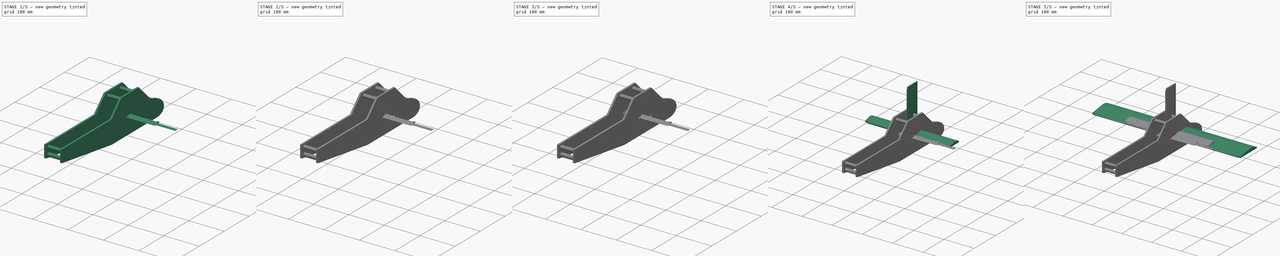
[diagram: build sequence overview — one tinted view per stage of 5, left to right]
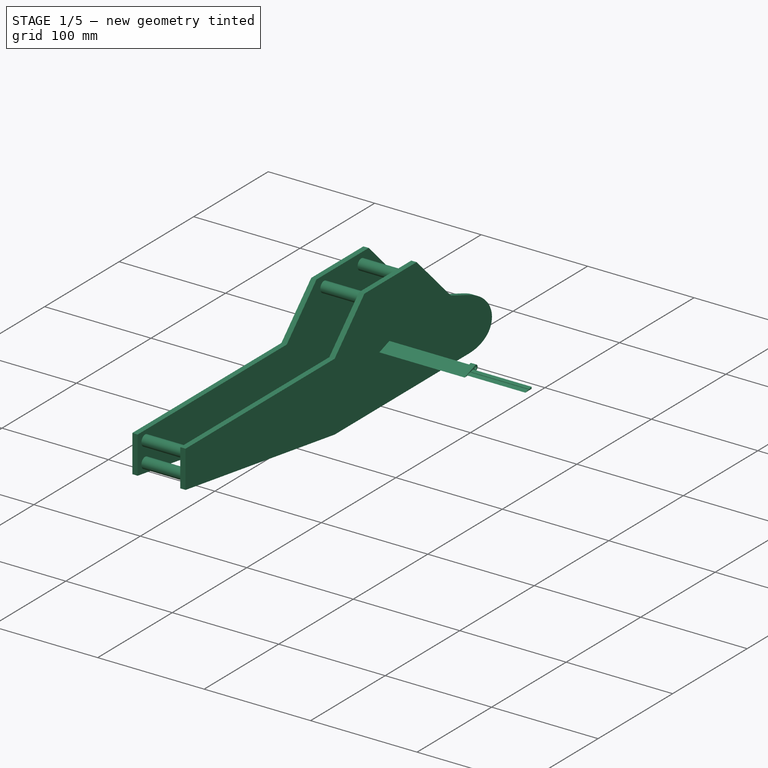
[diagram: stage 1 of 5 — iso view after this stage's code; geometry added in this stage tinted green]
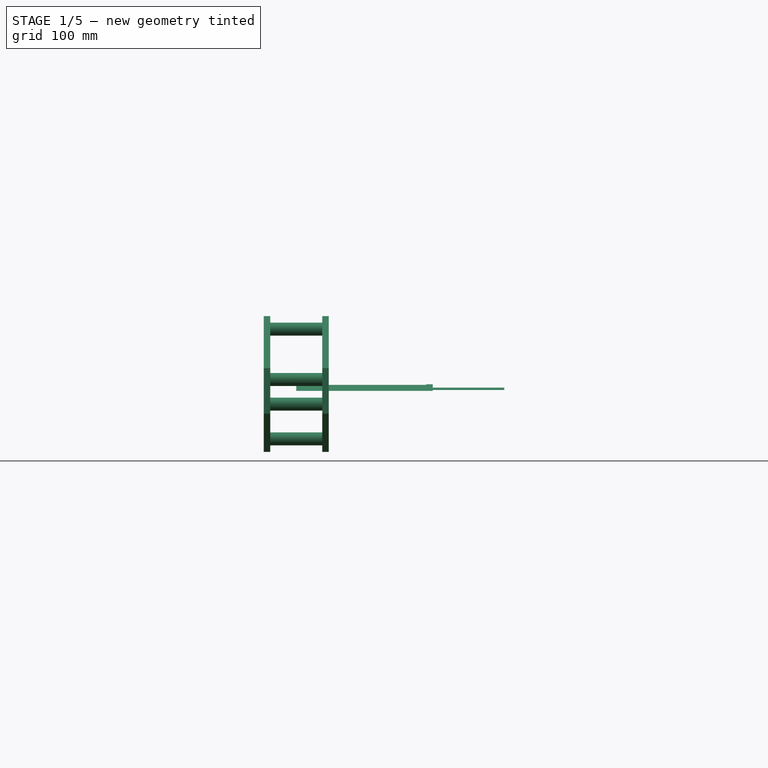
[diagram: stage 1 of 5 — front view after this stage's code; geometry added in this stage tinted green]
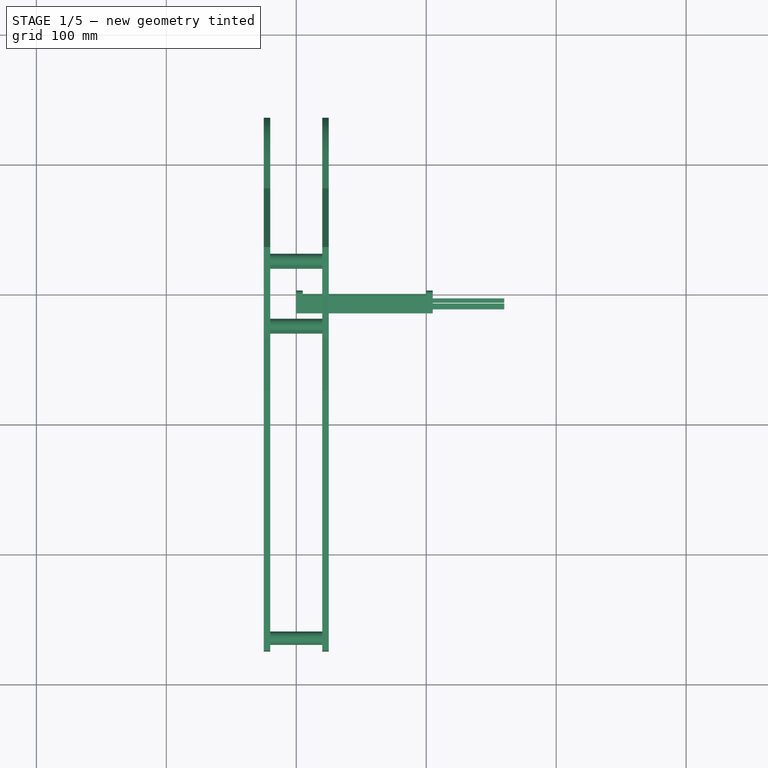
[diagram: stage 1 of 5 — top view after this stage's code; geometry added in this stage tinted green]
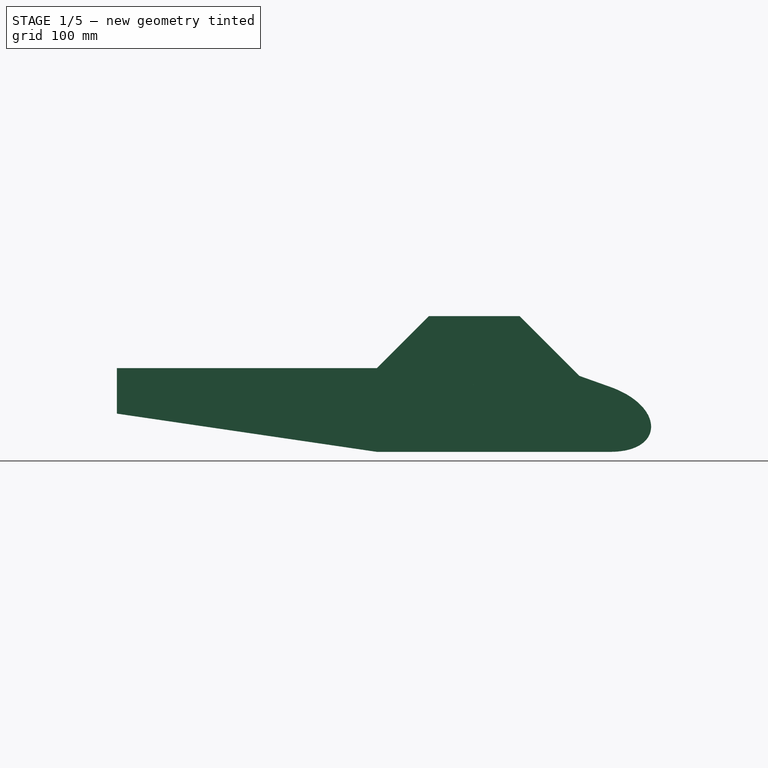
[diagram: stage 1 of 5 — right view after this stage's code; geometry added in this stage tinted green]
FCSTD DOCUMENT  (FreeCAD 1.0R39109 (Git))
Label: Airplane
License: All rights reserved
LicenseURL: http://en.wikipedia.org/wiki/All_rights_reserved
objects: Sketcher::SketchObject×58, PartDesign::Pocket×30, PartDesign::Pad×28, PartDesign::Body×10, App::VarSet×4
note: 300 computed .brp shape members not serialized (recipe doc carries the construction recipe); baked Part::Feature solids carry a one-line shape summary decoded from their .brp

FEATURE [Sketcher::SketchObject] Sketch025
  ArcFitTolerance = 1e-06
  AttachmentSupport = -> [YZ_Plane004]
  FullyConstrained = true
  MakeInternals = false
  MapMode = 5
  Placement = pos=(0,0,0) rot=(0.57735,0.57735,0.57735;2.0944rad)
  expr: Constraints[2] = VarSet002.FinLength
  expr: Constraints[3] = VarSet.JointDiameter / 2 + 1 mm
  sketch-geometry (3):
    g0: LineSegment StartX=-9e-16 StartY=5.12 StartZ=0 EndX=-15 EndY=0 EndZ=0
    g1: LineSegment StartX=-9e-16 StartY=0 StartZ=0 EndX=-15 EndY=0 EndZ=0
    g2: ArcOfCircle CenterX=-1.7e-15 CenterY=2.56 CenterZ=0 NormalX=0 NormalY=0 NormalZ=1 AngleXU=0 Radius=2.56 StartAngle=4.71239 EndAngle=7.85398
  constraints (8):
    c: Horizontal(g1)
    c: Coincident(g1,g0)
    c: DistanceX(g0,g1) = 15
    c: Radius(g2) = 2.56
    c: Coincident(g1,g-1)
    c: Vertical(g0,g1)
    c: Tangent(g2,g1) = 1.5708
    c: Coincident(g0,g2)
FEATURE [PartDesign::Pad] Pad015
  Direction = (1,0,0)
  Length = 105
  Length2 = 10
  Placement = pos=(0,0,0) rot=(1,1,1;2.0944rad)
  Profile = -> Sketch025
  ReferenceAxis = -> Sketch025 [N_Axis]
  Suppressed = false
  Type = 0
  expr: Length = VarSet002.FinWidth / 2 - VarSet.JointOffset
FEATURE [Sketcher::SketchObject] Sketch026
  ArcFitTolerance = 1e-06
  AttachmentSupport = -> [Pad015]
  ExternalGeometry = -> [Pad015]
  FullyConstrained = true
  MakeInternals = false
  MapMode = 5
  Placement = pos=(105,0,0) rot=(0.57735,0.57735,0.57735;2.0944rad)
  sketch-geometry (1):
    g0: Circle CenterX=1.2235e-12 CenterY=2.56 CenterZ=0 NormalX=0 NormalY=0 NormalZ=1 AngleXU=0 Radius=2.56
  constraints (2):
    c: Equal(g0,g-3)
    c: Coincident(g0,g-3)
FEATURE [PartDesign::Pocket] Pocket010
  BaseFeature = -> Pad015
  Direction = (-1,0,0)
  Length = 100
  Length2 = 64
  Offset = -5
  Placement = pos=(0,0,0) rot=(1,1,1;2.0944rad)
  Profile = -> Sketch026
  ReferenceAxis = -> Sketch026 [N_Axis]
  Suppressed = false
  Type = 0
  expr: Length = VarSet002.FinWidth / 2 - VarSet.JointWidth - VarSet.JointOffset
FEATURE [Sketcher::SketchObject] Sketch027
  ArcFitTolerance = 1e-06
  AttachmentSupport = -> [Pocket010]
  ExternalGeometry = -> [Pocket010]
  FullyConstrained = true
  MakeInternals = false
  MapMode = 5
  Placement = pos=(5,0,0) rot=(0.57735,0.57735,0.57735;2.0944rad)
  expr: Constraints[1] = VarSet.JointDiameter / 2
  sketch-geometry (1):
    g0: Circle CenterX=-2.5e-15 CenterY=2.56 CenterZ=0 NormalX=0 NormalY=0 NormalZ=1 AngleXU=0 Radius=1.56
  constraints (2):
    c: Coincident(g0,g-3)
    c: Radius(g0) = 1.56
FEATURE [PartDesign::Pocket] Pocket011
  BaseFeature = -> Pocket010
  Direction = (-1,0,0)
  Length = 5
  Length2 = 5
  Placement = pos=(0,0,0) rot=(1,1,1;2.0944rad)
  Profile = -> Sketch027
  ReferenceAxis = -> Sketch027 [N_Axis]
  Suppressed = false
  Type = 1
FEATURE [Sketcher::SketchObject] Sketch028
  ArcFitTolerance = 1e-06
  AttachmentSupport = -> [Pocket011]
  ExternalGeometry = -> [Pocket011]
  FullyConstrained = true
  MakeInternals = false
  MapMode = 5
  Placement = pos=(105,0,0) rot=(0.57735,0.57735,0.57735;2.0944rad)
  expr: Constraints[13] = VarSet002.AttachmentAngle + 90 °
  expr: Constraints[15] = VarSet002.AttachmentCircDist
  expr: Constraints[16] = VarSet002.Attachment1Width
  expr: Constraints[23] = 135 ° - VarSet002.AttachmentAngle
  expr: Constraints[26] = VarSet002.Attachment2Width
  expr: Constraints[27] = VarSet002.AttachmentEndDist
  expr: Constraints[8] = VarSet002.AttachmentAngle
  sketch-geometry (11):
    g0: LineSegment StartX=-7.5 StartY=1.66919 StartZ=0 EndX=-12 EndY=0.712258 EndZ=0
    g1: LineSegment StartX=-12 StartY=0.712258 StartZ=0 EndX=-7.5 EndY=0.712258 EndZ=0
    g2: LineSegment StartX=-7.5 StartY=0.712258 StartZ=0 EndX=-7.5 EndY=1.66919 EndZ=0
    g3: LineSegment StartX=-3.56 StartY=2.50703 StartZ=0 EndX=-7 EndY=1.77551 EndZ=0
    g4: LineSegment StartX=-7 StartY=1.77551 StartZ=0 EndX=-7 EndY=0.712258 EndZ=0
    g5: LineSegment StartX=-7 StartY=0.712258 StartZ=0 EndX=-3.56 EndY=0.712258 EndZ=0
    g6: LineSegment StartX=-3.56 StartY=0.712258 StartZ=0 EndX=-3.56 EndY=2.50703 EndZ=0
    g7: LineSegment [constr] StartX=-7.5 StartY=1.66919 StartZ=0 EndX=-7 EndY=1.77551 EndZ=0
    g8: GeomPoint X=-7.25 Y=1.19072 Z=0
    g9: GeomPoint X=-8.02311 Y=2.38144 Z=0
    g10: LineSegment [constr] StartX=-6.47689 StartY=6.5e-15 StartZ=0 EndX=-8.02311 EndY=2.38144 EndZ=0
  constraints (28):
    c: Horizontal(g1)
    c: Coincident(g1,g2)
    c: Coincident(g2,g0)
    c: Coincident(g3,g4)
    c: Horizontal(g5)
    c: Coincident(g5,g6)
    c: Coincident(g6,g3)
    c: Coincident(g0,g1)
    c: Angle(g1,g0) = 0.20953
    c: Vertical(g2)
    c: Coincident(g5,g4)
    c: Vertical(g4)
    c: Vertical(g6)
    c: Angle(g4,g3) = 1.78033
    c: Horizontal(g1,g4)
    c: Distance(g-3,g6) = 1
    c: DistanceX(g1,g4) = 0.5
    c: Coincident(g7,g0)
    c: Coincident(g7,g3)
    c: Parallel(g7,g3)
    c: Symmetric(g0,g4,g8)
    c: PointOnObject(g9,g-4)
    c: Coincident(g10,g9)
    c: Angle(g10) = 2.14666
    c: Symmetric(g10,g9,g8)
    c: PointOnObject(g10,g-5)
    c: DistanceX(g0,g1) = 4.5
    c: DistanceX(g-5,g0) = 3
FEATURE [PartDesign::Pad] Pad016
  BaseFeature = -> Pocket011
  Direction = (1,0,0)
  Length = 55
  Length2 = 10
  Placement = pos=(0,0,0) rot=(1,1,1;2.0944rad)
  Profile = -> Sketch028
  ReferenceAxis = -> Sketch028 [N_Axis]
  Suppressed = false
  Type = 0
  expr: Length = VarSet002.AttachmentLength
FEATURE [Sketcher::SketchObject] Sketch029
  ArcFitTolerance = 1e-06
  AttachmentSupport = -> [YZ_Plane005]
  FullyConstrained = true
  MakeInternals = false
  MapMode = 5
  Placement = pos=(0,0,0) rot=(0.57735,0.57735,0.57735;2.0944rad)
  expr: Constraints[2] = VarSet002.FinLength
  expr: Constraints[3] = VarSet.JointDiameter / 2 + 1 mm
  sketch-geometry (3):
    g0: LineSegment StartX=1.8e-15 StartY=5.12 StartZ=0 EndX=-15 EndY=0 EndZ=0
    g1: LineSegment StartX=1.8e-15 StartY=0 StartZ=0 EndX=-15 EndY=0 EndZ=0
    g2: ArcOfCircle CenterX=-1.3e-15 CenterY=2.56 CenterZ=0 NormalX=0 NormalY=0 NormalZ=1 AngleXU=0 Radius=2.56 StartAngle=4.71239 EndAngle=7.85398
  constraints (8):
    c: Horizontal(g1)
    c: Coincident(g1,g0)
    c: DistanceX(g0,g1) = 15
    c: Radius(g2) = 2.56
    c: Coincident(g1,g-1)
    c: Vertical(g0,g1)
    c: Tangent(g2,g1) = 1.5708
    c: Coincident(g0,g2)
FEATURE [PartDesign::Pad] Pad017
  Direction = (1,0,0)
  Length = 105
  Length2 = 10
  Placement = pos=(0,0,0) rot=(1,1,1;2.0944rad)
  Profile = -> Sketch029
  ReferenceAxis = -> Sketch029 [N_Axis]
  Suppressed = false
  Type = 0
  expr: Length = VarSet002.FinWidth / 2 - VarSet.JointOffset
FEATURE [Sketcher::SketchObject] Sketch030
  ArcFitTolerance = 1e-06
  AttachmentSupport = -> [Pad017]
  ExternalGeometry = -> [Pad017]
  FullyConstrained = true
  MakeInternals = false
  MapMode = 5
  Placement = pos=(0,0,0) rot=(0.57735,0.57735,-0.57735;4.18879rad)
  sketch-geometry (1):
    g0: Circle CenterX=0 CenterY=-2.56 CenterZ=0 NormalX=0 NormalY=0 NormalZ=1 AngleXU=0 Radius=2.56
  constraints (2):
    c: Coincident(g0,g-3)
    c: Equal(g0,g-3)
FEATURE [PartDesign::Pocket] Pocket012
  BaseFeature = -> Pad017
  Direction = (1,0,0)
  Length = 100
  Length2 = 5
  Placement = pos=(0,0,0) rot=(1,1,1;2.0944rad)
  Profile = -> Sketch030
  ReferenceAxis = -> Sketch030 [N_Axis]
  Suppressed = false
  Type = 0
  expr: Length = VarSet002.FinWidth / 2 - VarSet.JointWidth - VarSet.JointOffset
FEATURE [Sketcher::SketchObject] Sketch031
  ArcFitTolerance = 1e-06
  AttachmentSupport = -> [Pad016]
  ExternalGeometry = -> [Pad016]
  FullyConstrained = true
  MakeInternals = false
  MapMode = 5
  Placement = pos=(-3e-16,-1.56526,4.58572) rot=(0.161575,0.161575,-0.973544;1.59761rad)
  expr: Constraints[0] = VarSet.FinControlHoleDiameter
  expr: Constraints[1] = VarSet.FinControlHoleXDist
  expr: Constraints[2] = VarSet.FinControlHoleYDist
  sketch-geometry (1):
    g0: Circle CenterX=9.19581 CenterY=100 CenterZ=0 NormalX=0 NormalY=0 NormalZ=1 AngleXU=0 Radius=1.5
  constraints (3):
    c: Diameter(g0) = 3
    c: Distance(g0,g-3) = 5
    c: Distance(g0,g-4) = 5
FEATURE [PartDesign::Pocket] Pocket013
  BaseFeature = -> Pad016
  Direction = (1.2e-15,0.323034,-0.946387)
  Length = 5
  Length2 = 5
  Placement = pos=(0,0,0) rot=(1,1,1;2.0944rad)
  Profile = -> Sketch031
  ReferenceAxis = -> Sketch031 [N_Axis]
  Suppressed = false
  Type = 1
FEATURE [Sketcher::SketchObject] Sketch032
  ArcFitTolerance = 1e-06
  AttachmentSupport = -> [Pocket012]
  ExternalGeometry = -> [Pocket012]
  FullyConstrained = true
  MakeInternals = false
  MapMode = 5
  Placement = pos=(105,0,0) rot=(0.57735,0.57735,0.57735;2.0944rad)
  expr: Constraints[1] = VarSet.JointDiameter / 2
  sketch-geometry (1):
    g0: Circle CenterX=-7e-16 CenterY=2.56 CenterZ=0 NormalX=0 NormalY=0 NormalZ=1 AngleXU=0 Radius=1.56
  constraints (2):
    c: Coincident(g0,g-3)
    c: Radius(g0) = 1.56
FEATURE [PartDesign::Pocket] Pocket014
  BaseFeature = -> Pocket012
  Direction = (-1,0,0)
  Length = 5
  Length2 = 5
  Placement = pos=(0,0,0) rot=(1,1,1;2.0944rad)
  Profile = -> Sketch032
  ReferenceAxis = -> Sketch032 [N_Axis]
  Suppressed = false
  Type = 1
FEATURE [Sketcher::SketchObject] Sketch033
  ArcFitTolerance = 1e-06
  AttachmentSupport = -> [Pocket014]
  ExternalGeometry = -> [Pocket014]
  FullyConstrained = true
  MakeInternals = false
  MapMode = 5
  Placement = pos=(0,0,0) rot=(0.57735,0.57735,-0.57735;4.18879rad)
  expr: Constraints[13] = -(VarSet002.AttachmentAngle + 90 °)
  expr: Constraints[14] = VarSet002.AttachmentCircDist
  expr: Constraints[15] = VarSet002.AttachmentEndDist
  expr: Constraints[16] = VarSet002.Attachment1Width
  expr: Constraints[18] = VarSet002.Attachment2Width
  expr: Constraints[26] = 45 ° - VarSet002.AttachmentAngle
  expr: Constraints[8] = -VarSet002.AttachmentAngle
  sketch-geometry (12):
    g0: LineSegment StartX=-7.5 StartY=-1.47266 StartZ=0 EndX=-12 EndY=-0.515734 EndZ=0
    g1: LineSegment StartX=-12 StartY=-0.515734 StartZ=0 EndX=-7.5 EndY=-0.515734 EndZ=0
    g2: LineSegment StartX=-7.5 StartY=-0.515734 StartZ=0 EndX=-7.5 EndY=-1.47266 EndZ=0
    g3: LineSegment StartX=-3.56 StartY=-2.31051 StartZ=0 EndX=-7 EndY=-1.57899 EndZ=0
    g4: LineSegment StartX=-7 StartY=-1.57899 StartZ=0 EndX=-7 EndY=-0.515734 EndZ=0
    g5: LineSegment StartX=-7 StartY=-0.515734 StartZ=0 EndX=-3.56 EndY=-0.515734 EndZ=0
    g6: LineSegment StartX=-3.56 StartY=-0.515734 StartZ=0 EndX=-3.56 EndY=-2.31051 EndZ=0
    g7: GeomPoint X=-5.63689 Y=-5.8e-15 Z=0
    g8: GeomPoint X=-8.86311 Y=-2.09472 Z=0
    g9: LineSegment [constr] StartX=-7.5 StartY=-1.47266 StartZ=0 EndX=-7 EndY=-1.57899 EndZ=0
    g10: LineSegment [constr] StartX=-8.86311 StartY=-2.09472 StartZ=0 EndX=-5.63689 EndY=-5.8e-15 EndZ=0
    g11: GeomPoint X=-7.25 Y=-1.04736 Z=0
  constraints (29):
    c: Horizontal(g1)
    c: Coincident(g1,g2)
    c: Coincident(g2,g0)
    c: Coincident(g3,g4)
    c: Horizontal(g5)
    c: Coincident(g5,g6)
    c: Coincident(g6,g3)
    c: Coincident(g0,g1)
    c: Angle(g1,g0) = -0.20953
    c: Vertical(g2)
    c: Coincident(g5,g4)
    c: Vertical(g4)
    c: Vertical(g6)
    c: Angle(g4,g3) = -1.78033
    c: Distance(g-3,g6) = 1
    c: DistanceX(g-4,g0) = 3
    c: DistanceX(g0,g3) = 0.5
    c: Horizontal(g1,g4)
    c: DistanceX(g0,g1) = 4.5
    c: PointOnObject(g7,g-4)
    c: PointOnObject(g8,g-5)
    c: Coincident(g9,g0)
    c: Coincident(g9,g3)
    c: Parallel(g9,g3)
    c: Coincident(g10,g8)
    c: Coincident(g10,g7)
    c: Angle(g10) = 0.575868
    c: Symmetric(g1,g3,g11)
    c: Symmetric(g8,g7,g11)
FEATURE [PartDesign::Pocket] Pocket015
  BaseFeature = -> Pocket014
  Direction = (1,0,0)
  Length = 55
  Length2 = 5
  Placement = pos=(0,0,0) rot=(1,1,1;2.0944rad)
  Profile = -> Sketch033
  ReferenceAxis = -> Sketch033 [N_Axis]
  Suppressed = false
  Type = 0
  expr: Length = VarSet002.AttachmentLength
FEATURE [App::VarSet] VarSet002
  Attachment1Width = 0.5
  Attachment2Width = 4.5
  AttachmentAngle = 12.0052
  AttachmentCircDist = 1
  AttachmentEndDist = 3
  AttachmentLength = 55
  BodyWidth = 100
  FinHeight = 4.12
  FinLength = 15
  FinWidth = 220
  JointAnchorLength = 175
  JointMargin = 5
  JointNotchWidth = 4.62
  JointWidth = 5
  JointXDist = 2.56
  Width = 500
  WingLength = 80
  WingStraightAngle = 8.4
  WingStraightLenght = 45
  WingWidth = 500
  expr: AttachmentAngle = asin(VarSet.JointDiameter / FinLength)
  expr: AttachmentLength = FinWidth / 4
  expr: FinWidth = (Width - VarSet.PlaneWidth - VarSet.JointOffset * 2) / 2
  expr: JointAnchorLength = WingWidth / 2 - BodyWidth / 2 - JointWidth * 2 - JointWidth * 3
  expr: JointNotchWidth = FinHeight + 0.5 mm
  expr: JointXDist = JointNotchWidth - FinHeight / 2
FEATURE [App::VarSet] VarSet003
  Attachment1Width = 5.5
  Attachment2Width = 7
  AttachmentCircDist = 3.52
  AttachmentEndDist = 4
  AttachmentLength = 31.0627
  Finwidth = 124.251
  Height = 141
  JointFinHeight = 4.12
  Length = 45
  NotchHeight = 6.74911
  expr: AttachmentLength = Finwidth / 4
  expr: Finwidth = Height - NotchHeight - VarSet.JointOffset * 2
  expr: Height = VarSet001.Width / 2
  expr: JointFinHeight = VarSet.JointDiameter + 1 mm
  expr: Length = VarSet001.Length + 5 mm
  expr: NotchHeight = VarSet001.StraightLength * tan(VarSet001.StraightAngle) + VarSet.JointFinHeight / 2
FEATURE [Sketcher::SketchObject] Sketch051
  ArcFitTolerance = 1e-06
  AttachmentSupport = -> [YZ_Plane009]
  FullyConstrained = true
  MakeInternals = false
  MapMode = 5
  Placement = pos=(0,0,0) rot=(0.57735,0.57735,0.57735;2.0944rad)
  sketch-geometry (17):
    g0: LineSegment StartX=-35 StartY=57.5 StartZ=0 EndX=35 EndY=57.5 EndZ=0
    g1: LineSegment StartX=35 StartY=57.5 StartZ=0 EndX=81 EndY=11.5 EndZ=0
    g2: LineSegment StartX=-35 StartY=57.5 StartZ=0 EndX=-75 EndY=17.5 EndZ=0
    g3: LineSegment StartX=-275 StartY=17.5 StartZ=0 EndX=-75 EndY=17.5 EndZ=0
    g4: GeomPoint X=0 Y=57.5 Z=0
    g5: LineSegment StartX=81 StartY=11.5 StartZ=0 EndX=104.544 EndY=3.09159 EndZ=0
    g6: LineSegment StartX=104.544 StartY=-46.9084 StartZ=0 EndX=-75 EndY=-46.9084 EndZ=0
    g7: LineSegment StartX=-75 StartY=-46.9084 StartZ=0 EndX=-275 EndY=-17.5 EndZ=0
    g8: LineSegment StartX=-275 StartY=-17.5 StartZ=0 EndX=-275 EndY=17.5 EndZ=0
    g9-g12: Circle [constr] x4 (B-spline internal-alignment scaffolding for g13; pole/knot coordinates omitted)
    g13: BSplineCurve PolesCount=4 KnotsCount=2 Degree=3 IsPeriodic=0
    g14: GeomPoint [constr] X=104.544 Y=3.09159 Z=0
    g15: GeomPoint [constr] X=104.544 Y=-46.9084 Z=0
    g16: GeomPoint [constr] X=-275 Y=0 Z=0
  constraints (38):
    c: Distance(g0) = 70
    c: Horizontal(g0)
    c: Coincident(g1,g0)
    c: Coincident(g2,g0)
    c: Coincident(g3,g2)
    c: Horizontal(g3)
    c: DistanceY(g2,g0) = 40
    c: Symmetric(g0,g0,g4)
    c: DistanceX(g2,g0) = 40
    c: DistanceX(g3,g2) = 200
    c: Coincident(g1,g5)
    c: Coincident(g6,g7)
    c: Coincident(g8,g7)
    c: Coincident(g8,g3)
    c: Vertical(g8)
    c: Horizontal(g6)
    c: Vertical(g6,g2)
    c: DistanceY(g1,g0) = 46
    c: DistanceX(g1,g1) = 46
    c: Weight(g9) = 1
    c: Equal(g9,g10)
    c: Equal(g9,g11)
    c: Equal(g9,g12)
    c: InternalAlignment(g9-g12 -> g13) x4
    c: InternalAlignment(g14,g13)
    c: InternalAlignment(g15,g13)
    c: Tangent(g13,g6) = -1.5708
    c: Tangent(g13,g5) = -1.5708
    c: Vertical(g11,g10)
    c: Vertical(g6,g5)
    c: DistanceY(g7,g3) = 35
    c: Distance(g5,g1) = 25
    c: DistanceY(g6,g5) = 50
    c: DistanceX(g6,g11) = 42
    c: DistanceY(g11,g10) = 35
    c: PointOnObject(g4,g-2)
    c: Symmetric(g8,g8,g16)
    c: PointOnObject(g16,g-1)
FEATURE [PartDesign::Pad] Pad027
  Direction = (1,0,0)
  Length = 50
  Length2 = 10
  Midplane = true
  Placement = pos=(0,0,0) rot=(1,1,1;2.0944rad)
  Profile = -> Sketch051
  ReferenceAxis = -> Sketch051 [N_Axis]
  Suppressed = false
  Type = 0
  expr: Length = VarSet.PlaneWidth
FEATURE [PartDesign::Body] Body005  label="WingFin-Right"
  AllowCompound = false
  Group = -> [Sketch029,Pad017,Sketch030,Pocket012,Sketch032,Pocket014,Sketch033,Pocket015,Sketch059,Pocket031]
  Origin = -> Origin005
  Tip = -> Pocket031
FEATURE [Sketcher::SketchObject] Sketch060
  ArcFitTolerance = 1e-06
  AttachmentSupport = -> [Pocket013]
  ExternalGeometry = -> [Pocket013]
  FullyConstrained = true
  MakeInternals = false
  MapMode = 5
  Placement = pos=(105,0,0) rot=(0.57735,0.57735,0.57735;2.0944rad)
  sketch-geometry (4):
    g0: ArcOfCircle CenterX=1.2167e-12 CenterY=2.56 CenterZ=0 NormalX=0 NormalY=0 NormalZ=1 AngleXU=0 Radius=2.56 StartAngle=2.22866 EndAngle=4.71239
    g1: LineSegment StartX=-2.75e-14 StartY=3.6e-15 StartZ=0 EndX=-2.56 EndY=4.4e-15 EndZ=0
    g2: LineSegment StartX=-2.56 StartY=4.24619 StartZ=0 EndX=-2.56 EndY=4.4e-15 EndZ=0
    g3: LineSegment StartX=-2.56 StartY=4.24619 StartZ=0 EndX=-1.56526 EndY=4.58572 EndZ=0
  constraints (11):
    c: Vertical(g2)
    c: Coincident(g3,g2)
    c: Coincident(g3,g0)
    c: Coincident(g1,g2)
    c: Coincident(g1,g0)
    c: Tangent(g2,g0)
    c: PointOnObject(g2,g-4)
    c: PointOnObject(g1,g-5)
    c: Coincident(g0,g-4)
    c: Coincident(g-3,g0)
    c: Equal(g-3,g0)
FEATURE [PartDesign::Pocket] Pocket032
  BaseFeature = -> Pocket013
  Direction = (-1,1e-15,1e-16)
  Length = 0
  Length2 = 5
  Placement = pos=(0,0,0) rot=(1,1,1;2.0944rad)
  Profile = -> Sketch060
  ReferenceAxis = -> Sketch060 [N_Axis]
  Suppressed = false
  Type = 3
  UpToFace = -> Pocket013 [Face5]
FEATURE [PartDesign::Body] Body004  label="WingFin-Left"
  AllowCompound = false
  Group = -> [Sketch025,Pad015,Sketch026,Pocket010,Sketch027,Pocket011,Sketch028,Pad016,Sketch031,Pocket013,Sketch060,Pocket032]
  Origin = -> Origin004
  Tip = -> Pocket032
FEATURE [Sketcher::SketchObject] Sketch061
  ArcFitTolerance = 1e-06
  AttachmentSupport = -> [YZ_Plane009]
  ExternalGeometry = -> [Pad027]
  FullyConstrained = true
  MakeInternals = false
  MapMode = 5
  Placement = pos=(0,0,0) rot=(0.57735,0.57735,0.57735;2.0944rad)
  sketch-geometry (18):
    g0: Circle CenterX=-25 CenterY=47.5 CenterZ=0 NormalX=0 NormalY=0 NormalZ=1 AngleXU=0 Radius=5
    g1: Circle CenterX=-25 CenterY=-36.9084 CenterZ=0 NormalX=0 NormalY=0 NormalZ=1 AngleXU=0 Radius=5
    g2: Circle CenterX=25 CenterY=47.5 CenterZ=0 NormalX=0 NormalY=0 NormalZ=1 AngleXU=0 Radius=5
    g3: Circle CenterX=-265 CenterY=8.75 CenterZ=0 NormalX=0 NormalY=0 NormalZ=1 AngleXU=0 Radius=5
    g4: Circle CenterX=-265 CenterY=-10.2204 CenterZ=0 NormalX=0 NormalY=0 NormalZ=1 AngleXU=0 Radius=5
    g5: LineSegment [constr] StartX=-25 StartY=-46.9084 StartZ=0 EndX=-25 EndY=-36.9084 EndZ=0
    g6: Circle CenterX=25 CenterY=-36.9084 CenterZ=0 NormalX=0 NormalY=0 NormalZ=1 AngleXU=0 Radius=5
    g7: LineSegment [constr] StartX=25 StartY=-36.9084 StartZ=0 EndX=25 EndY=-46.9084 EndZ=0
    g8: LineSegment StartX=-285 StartY=67.5 StartZ=0 EndX=-285 EndY=-56.9084 EndZ=0
    g9: LineSegment StartX=-285 StartY=-56.9084 StartZ=0 EndX=145.108 EndY=-56.9084 EndZ=0
    g10: LineSegment StartX=145.108 StartY=-56.9084 StartZ=0 EndX=145.108 EndY=67.5 EndZ=0
    g11: LineSegment StartX=145.108 StartY=67.5 StartZ=0 EndX=-285 EndY=67.5 EndZ=0
    g12: LineSegment [constr] StartX=-275 StartY=9.5e-14 StartZ=0 EndX=-265 EndY=9.5e-14 EndZ=0
    g13: LineSegment [constr] StartX=-265 StartY=17.5 StartZ=0 EndX=-265 EndY=13.75 EndZ=0
    g14: LineSegment [constr] StartX=-265 StartY=3.75 StartZ=0 EndX=-265 EndY=9.5e-14 EndZ=0
    g15: LineSegment [constr] StartX=-265 StartY=-15.2204 StartZ=0 EndX=-265 EndY=-18.9704 EndZ=0
    g16: LineSegment [constr] StartX=104.544 StartY=3.09159 StartZ=0 EndX=135.108 EndY=-21.9084 EndZ=0
    g17: LineSegment [constr] StartX=135.108 StartY=-21.9084 StartZ=0 EndX=104.544 EndY=-46.9084 EndZ=0
  constraints (55):
    c: Coincident(g8,g9)
    c: Coincident(g9,g10)
    c: Coincident(g10,g11)
    c: Coincident(g11,g8)
    c: Vertical(g8)
    c: Vertical(g10)
    c: Horizontal(g9)
    c: Horizontal(g11)
    c: Distance(g-3,g11) = 10
    c: Distance(g5,g9) = 10
    c: Vertical(g5)
    c: Vertical(g7)
    c: Diameter(g0) = 10
    c: Diameter(g2) = 10
    c: Diameter(g6) = 10
    c: Diameter(g1) = 10
    c: DistanceY(g5,g5) = 10
    c: Diameter(g4) = 10
    c: Diameter(g3) = 10
    c: Vertical(g4,g3)
    c: Coincident(g1,g5)
    c: Vertical(g0,g1)
    c: Coincident(g6,g7)
    c: Horizontal(g12)
    c: Symmetric(g-7,g-7,g12)
    c: PointOnObject(g13,g-6)
    c: PointOnObject(g13,g3)
    c: Vertical(g13)
    c: PointOnObject(g14,g3)
    c: Coincident(g14,g12)
    c: Vertical(g14)
    c: Equal(g14,g13)
    c: Vertical(g14,g13)
    c: DistanceX(g12,g12) = 10
    c: PointOnObject(g5,g-9)
    c: Equal(g5,g7)
    c: PointOnObject(g7,g-9)
    c: Distance(g2,g-3) = 10
    c: Horizontal(g0,g2)
    c: Vertical(g6,g2)
    c: Vertical(g4,g12)
    c: PointOnObject(g15,g4)
    c: PointOnObject(g15,g-8)
    c: Vertical(g15)
    c: Vertical(g15,g4)
    c: Equal(g14,g15)
    c: DistanceX(g-4,g0) = 10
    c: DistanceX(g2,g-5) = 10
    c: Coincident(g16,g-10)
    c: PointOnObject(g16,g-10)
    c: Coincident(g16,g17)
    c: Coincident(g17,g-10)
    c: Equal(g16,g17)
    c: Distance(g16,g10) = 10
    c: Distance(g-7,g8) = 10
FEATURE [PartDesign::Pocket] Pocket033
  BaseFeature = -> Pad027
  Direction = (-1,0,0)
  Length = 40
  Length2 = 5
  Midplane = true
  Placement = pos=(0,0,0) rot=(1,1,1;2.0944rad)
  Profile = -> Sketch061
  ReferenceAxis = -> Sketch061 [N_Axis]
  Suppressed = false
  Type = 0
  expr: Length = VarSet.PlaneWidth - VarSet.PlaneWallThickness * 2
FEATURE [PartDesign::Body] Body009  label="Body"
  AllowCompound = false
  Group = -> [Sketch051,Pad027,Sketch061,Pocket033]
  Origin = -> Origin009
  Tip = -> Pocket033
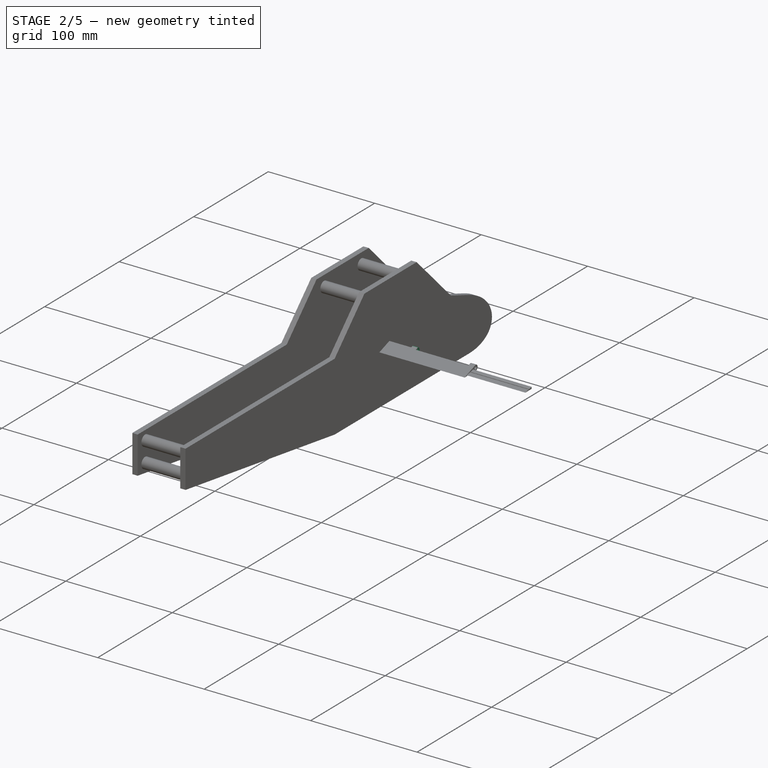
[diagram: stage 2 of 5 — iso view after this stage's code; geometry added in this stage tinted green]
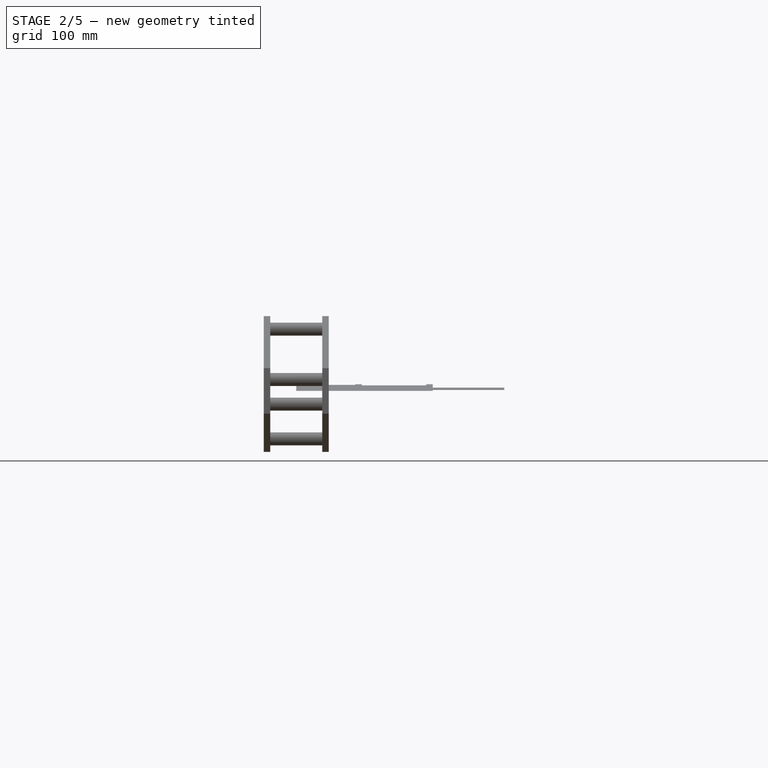
[diagram: stage 2 of 5 — front view after this stage's code; geometry added in this stage tinted green]
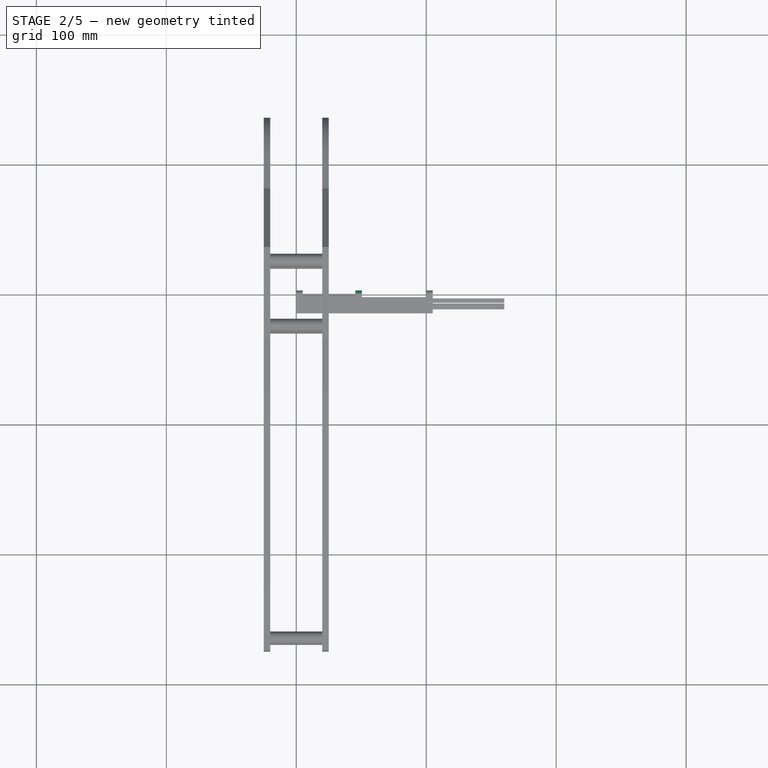
[diagram: stage 2 of 5 — top view after this stage's code; geometry added in this stage tinted green]
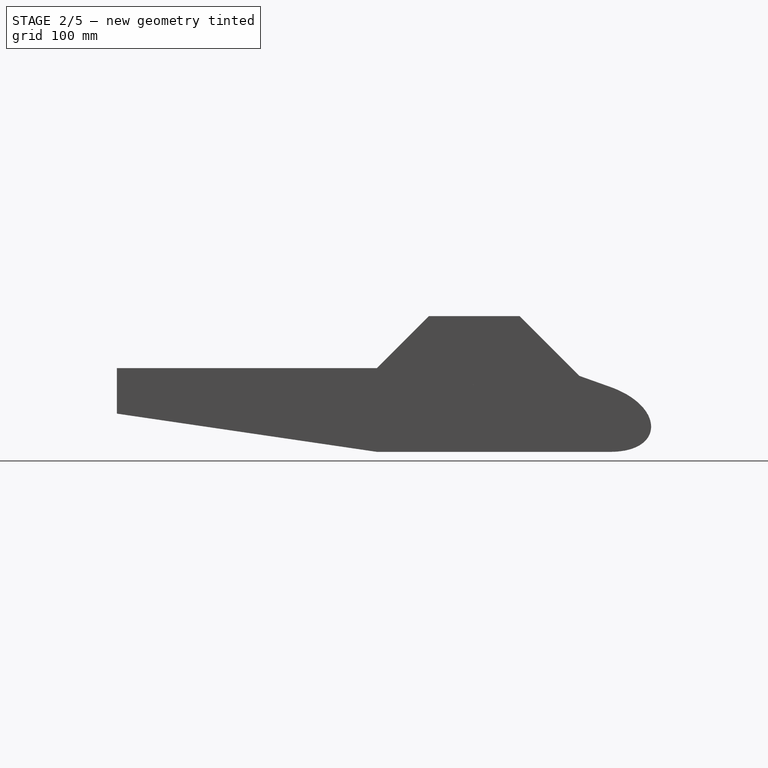
[diagram: stage 2 of 5 — right view after this stage's code; geometry added in this stage tinted green]
FEATURE [App::VarSet] VarSet001
  AttachmentAngle = 12.0052
  AttachmentCircDist = 1
  AttachmentEndDist = 3
  AttachmentLength = 27.75
  AttachmentP2Width = 4.5
  AttachmentPDist = 0.5
  FinLength = 15
  FinWidth = 111
  Length = 40
  StraightAngle = 15
  StraightLength = 17.5
  Width = 282
  expr: AttachmentAngle = asin(VarSet.JointDiameter / FinLength)
  expr: AttachmentLength = FinWidth / 4
  expr: FinWidth = (Width - VarSet.PlaneWidth) / 2 - VarSet.JointOffset
FEATURE [Sketcher::SketchObject] Sketch035
  ArcFitTolerance = 1e-06
  AttachmentSupport = -> [YZ_Plane006]
  FullyConstrained = true
  MakeInternals = false
  MapMode = 5
  Placement = pos=(0,0,0) rot=(0.57735,0.57735,0.57735;2.0944rad)
  expr: Constraints[2] = VarSet001.FinLength
  expr: Constraints[3] = VarSet.JointDiameter / 2 + 1 mm
  sketch-geometry (3):
    g0: LineSegment StartX=5e-16 StartY=5.12 StartZ=0 EndX=-15 EndY=0 EndZ=0
    g1: LineSegment StartX=5e-16 StartY=0 StartZ=0 EndX=-15 EndY=0 EndZ=0
    g2: ArcOfCircle CenterX=-1.3e-15 CenterY=2.56 CenterZ=0 NormalX=0 NormalY=0 NormalZ=1 AngleXU=0 Radius=2.56 StartAngle=4.71239 EndAngle=7.85398
  constraints (8):
    c: Horizontal(g1)
    c: Coincident(g1,g0)
    c: DistanceX(g0,g1) = 15
    c: Radius(g2) = 2.56
    c: Coincident(g1,g-1)
    c: Vertical(g0,g1)
    c: Tangent(g2,g1) = 1.5708
    c: Coincident(g0,g2)
FEATURE [PartDesign::Pad] Pad018
  Direction = (1,0,0)
  Length = 50.5
  Length2 = 10
  Placement = pos=(0,0,0) rot=(1,1,1;2.0944rad)
  Profile = -> Sketch035
  ReferenceAxis = -> Sketch035 [N_Axis]
  Suppressed = false
  Type = 0
  expr: Length = VarSet001.FinWidth / 2 - VarSet.JointOffset
FEATURE [Sketcher::SketchObject] Sketch036
  ArcFitTolerance = 1e-06
  AttachmentSupport = -> [Pad018]
  ExternalGeometry = -> [Pad018]
  FullyConstrained = true
  MakeInternals = false
  MapMode = 5
  Placement = pos=(0,0,0) rot=(0.57735,0.57735,-0.57735;4.18879rad)
  sketch-geometry (1):
    g0: Circle CenterX=0 CenterY=-2.56 CenterZ=0 NormalX=0 NormalY=0 NormalZ=1 AngleXU=0 Radius=2.56
  constraints (2):
    c: Coincident(g0,g-3)
    c: Equal(g0,g-3)
FEATURE [PartDesign::Pocket] Pocket017
  BaseFeature = -> Pad018
  Direction = (1,0,0)
  Length = 45.5
  Length2 = 5
  Placement = pos=(0,0,0) rot=(1,1,1;2.0944rad)
  Profile = -> Sketch036
  ReferenceAxis = -> Sketch036 [N_Axis]
  Suppressed = false
  Type = 0
  expr: Length = VarSet001.FinWidth / 2 - VarSet.JointWidth - VarSet.JointOffset
FEATURE [Sketcher::SketchObject] Sketch037
  ArcFitTolerance = 1e-06
  AttachmentSupport = -> [Pocket017]
  ExternalGeometry = -> [Pocket017]
  FullyConstrained = true
  MakeInternals = false
  MapMode = 5
  Placement = pos=(50.5,0,0) rot=(0.57735,0.57735,0.57735;2.0944rad)
  expr: Constraints[1] = VarSet.JointDiameter / 2
  sketch-geometry (1):
    g0: Circle CenterX=-7e-16 CenterY=2.56 CenterZ=0 NormalX=0 NormalY=0 NormalZ=1 AngleXU=0 Radius=1.56
  constraints (2):
    c: Coincident(g0,g-3)
    c: Radius(g0) = 1.56
FEATURE [PartDesign::Pocket] Pocket018
  BaseFeature = -> Pocket017
  Direction = (-1,0,0)
  Length = 5
  Length2 = 5
  Placement = pos=(0,0,0) rot=(1,1,1;2.0944rad)
  Profile = -> Sketch037
  ReferenceAxis = -> Sketch037 [N_Axis]
  Suppressed = false
  Type = 1
FEATURE [Sketcher::SketchObject] Sketch038
  ArcFitTolerance = 1e-06
  AttachmentSupport = -> [Pocket018]
  ExternalGeometry = -> [Pocket018]
  FullyConstrained = true
  MakeInternals = false
  MapMode = 5
  Placement = pos=(0,0,0) rot=(0.57735,0.57735,-0.57735;4.18879rad)
  expr: Constraints[13] = -(VarSet001.AttachmentAngle + 90 °)
  expr: Constraints[14] = VarSet001.AttachmentCircDist
  expr: Constraints[15] = VarSet001.AttachmentEndDist
  expr: Constraints[16] = VarSet001.AttachmentPDist
  expr: Constraints[18] = VarSet001.AttachmentP2Width
  expr: Constraints[26] = 45 ° - VarSet001.AttachmentAngle
  expr: Constraints[8] = -VarSet001.AttachmentAngle
  sketch-geometry (12):
    g0: LineSegment StartX=-7.5 StartY=-1.47266 StartZ=0 EndX=-12 EndY=-0.515734 EndZ=0
    g1: LineSegment StartX=-12 StartY=-0.515734 StartZ=0 EndX=-7.5 EndY=-0.515734 EndZ=0
    g2: LineSegment StartX=-7.5 StartY=-0.515734 StartZ=0 EndX=-7.5 EndY=-1.47266 EndZ=0
    g3: LineSegment StartX=-3.56 StartY=-2.31051 StartZ=0 EndX=-7 EndY=-1.57899 EndZ=0
    g4: LineSegment StartX=-7 StartY=-1.57899 StartZ=0 EndX=-7 EndY=-0.515734 EndZ=0
    g5: LineSegment StartX=-7 StartY=-0.515734 StartZ=0 EndX=-3.56 EndY=-0.515734 EndZ=0
    g6: LineSegment StartX=-3.56 StartY=-0.515734 StartZ=0 EndX=-3.56 EndY=-2.31051 EndZ=0
    g7: GeomPoint X=-5.63689 Y=-5.8e-15 Z=0
    g8: GeomPoint X=-8.86311 Y=-2.09472 Z=0
    g9: LineSegment [constr] StartX=-7.5 StartY=-1.47266 StartZ=0 EndX=-7 EndY=-1.57899 EndZ=0
    g10: LineSegment [constr] StartX=-8.86311 StartY=-2.09472 StartZ=0 EndX=-5.63689 EndY=-5.8e-15 EndZ=0
    g11: GeomPoint X=-7.25 Y=-1.04736 Z=0
  constraints (29):
    c: Horizontal(g1)
    c: Coincident(g1,g2)
    c: Coincident(g2,g0)
    c: Coincident(g3,g4)
    c: Horizontal(g5)
    c: Coincident(g5,g6)
    c: Coincident(g6,g3)
    c: Coincident(g0,g1)
    c: Angle(g1,g0) = -0.20953
    c: Vertical(g2)
    c: Coincident(g5,g4)
    c: Vertical(g4)
    c: Vertical(g6)
    c: Angle(g4,g3) = -1.78033
    c: Distance(g-3,g6) = 1
    c: DistanceX(g-4,g0) = 3
    c: DistanceX(g0,g3) = 0.5
    c: Horizontal(g1,g4)
    c: DistanceX(g0,g1) = 4.5
    c: PointOnObject(g7,g-4)
    c: PointOnObject(g8,g-5)
    c: Coincident(g9,g0)
    c: Coincident(g9,g3)
    c: Parallel(g9,g3)
    c: Coincident(g10,g8)
    c: Coincident(g10,g7)
    c: Angle(g10) = 0.575868
    c: Symmetric(g1,g3,g11)
    c: Symmetric(g8,g7,g11)
FEATURE [PartDesign::Pocket] Pocket019
  BaseFeature = -> Pocket018
  Direction = (1,0,0)
  Length = 27.75
  Length2 = 5
  Placement = pos=(0,0,0) rot=(1,1,1;2.0944rad)
  Profile = -> Sketch038
  ReferenceAxis = -> Sketch038 [N_Axis]
  Suppressed = false
  Type = 0
  expr: Length = VarSet001.AttachmentLength
FEATURE [Sketcher::SketchObject] Sketch040
  ArcFitTolerance = 1e-06
  AttachmentSupport = -> [YZ_Plane007]
  FullyConstrained = true
  MakeInternals = false
  MapMode = 5
  Placement = pos=(0,0,0) rot=(0.57735,0.57735,0.57735;2.0944rad)
  expr: Constraints[2] = VarSet001.FinLength
  expr: Constraints[3] = VarSet.JointDiameter / 2 + 1 mm
  sketch-geometry (3):
    g0: LineSegment StartX=-9e-16 StartY=5.12 StartZ=0 EndX=-15 EndY=0 EndZ=0
    g1: LineSegment StartX=-9e-16 StartY=0 StartZ=0 EndX=-15 EndY=0 EndZ=0
    g2: ArcOfCircle CenterX=-1.7e-15 CenterY=2.56 CenterZ=0 NormalX=0 NormalY=0 NormalZ=1 AngleXU=0 Radius=2.56 StartAngle=4.71239 EndAngle=7.85398
  constraints (8):
    c: Horizontal(g1)
    c: Coincident(g1,g0)
    c: DistanceX(g0,g1) = 15
    c: Radius(g2) = 2.56
    c: Coincident(g1,g-1)
    c: Vertical(g0,g1)
    c: Tangent(g2,g1) = 1.5708
    c: Coincident(g0,g2)
FEATURE [PartDesign::Pad] Pad019
  Direction = (1,0,0)
  Length = 50.5
  Length2 = 10
  Placement = pos=(0,0,0) rot=(1,1,1;2.0944rad)
  Profile = -> Sketch040
  ReferenceAxis = -> Sketch040 [N_Axis]
  Suppressed = false
  Type = 0
  expr: Length = VarSet001.FinWidth / 2 - VarSet.JointOffset
FEATURE [Sketcher::SketchObject] Sketch041
  ArcFitTolerance = 1e-06
  AttachmentSupport = -> [Pad019]
  ExternalGeometry = -> [Pad019]
  FullyConstrained = true
  MakeInternals = false
  MapMode = 5
  Placement = pos=(50.5,0,0) rot=(0.57735,0.57735,0.57735;2.0944rad)
  sketch-geometry (1):
    g0: Circle CenterX=1.2235e-12 CenterY=2.56 CenterZ=0 NormalX=0 NormalY=0 NormalZ=1 AngleXU=0 Radius=2.56
  constraints (2):
    c: Equal(g0,g-3)
    c: Coincident(g0,g-3)
FEATURE [PartDesign::Pocket] Pocket021
  BaseFeature = -> Pad019
  Direction = (-1,0,0)
  Length = 45.5
  Length2 = 64
  Offset = -5
  Placement = pos=(0,0,0) rot=(1,1,1;2.0944rad)
  Profile = -> Sketch041
  ReferenceAxis = -> Sketch041 [N_Axis]
  Suppressed = false
  Type = 0
  expr: Length = VarSet001.FinWidth / 2 - VarSet.JointWidth - VarSet.JointOffset
FEATURE [Sketcher::SketchObject] Sketch042
  ArcFitTolerance = 1e-06
  AttachmentSupport = -> [Pocket021]
  ExternalGeometry = -> [Pocket021]
  FullyConstrained = true
  MakeInternals = false
  MapMode = 5
  Placement = pos=(5,0,0) rot=(0.57735,0.57735,0.57735;2.0944rad)
  expr: Constraints[1] = VarSet.JointDiameter / 2
  sketch-geometry (1):
    g0: Circle CenterX=-2.5e-15 CenterY=2.56 CenterZ=0 NormalX=0 NormalY=0 NormalZ=1 AngleXU=0 Radius=1.56
  constraints (2):
    c: Coincident(g0,g-3)
    c: Radius(g0) = 1.56
FEATURE [PartDesign::Pocket] Pocket022
  BaseFeature = -> Pocket021
  Direction = (-1,0,0)
  Length = 5
  Length2 = 5
  Placement = pos=(0,0,0) rot=(1,1,1;2.0944rad)
  Profile = -> Sketch042
  ReferenceAxis = -> Sketch042 [N_Axis]
  Suppressed = false
  Type = 1
FEATURE [Sketcher::SketchObject] Sketch043
  ArcFitTolerance = 1e-06
  AttachmentSupport = -> [Pocket022]
  ExternalGeometry = -> [Pocket022]
  FullyConstrained = true
  MakeInternals = false
  MapMode = 5
  Placement = pos=(50.5,0,0) rot=(0.57735,0.57735,0.57735;2.0944rad)
  expr: Constraints[13] = VarSet001.AttachmentAngle + 90 °
  expr: Constraints[15] = VarSet001.AttachmentCircDist
  expr: Constraints[16] = VarSet001.AttachmentPDist
  expr: Constraints[23] = 180 ° - 45 ° - VarSet001.AttachmentAngle
  expr: Constraints[26] = VarSet001.AttachmentP2Width
  expr: Constraints[27] = VarSet001.AttachmentEndDist
  expr: Constraints[8] = VarSet001.AttachmentAngle
  sketch-geometry (11):
    g0: LineSegment StartX=-7.5 StartY=1.66919 StartZ=0 EndX=-12 EndY=0.712258 EndZ=0
    g1: LineSegment StartX=-12 StartY=0.712258 StartZ=0 EndX=-7.5 EndY=0.712258 EndZ=0
    g2: LineSegment StartX=-7.5 StartY=0.712258 StartZ=0 EndX=-7.5 EndY=1.66919 EndZ=0
    g3: LineSegment StartX=-3.56 StartY=2.50703 StartZ=0 EndX=-7 EndY=1.77551 EndZ=0
    g4: LineSegment StartX=-7 StartY=1.77551 StartZ=0 EndX=-7 EndY=0.712258 EndZ=0
    g5: LineSegment StartX=-7 StartY=0.712258 StartZ=0 EndX=-3.56 EndY=0.712258 EndZ=0
    g6: LineSegment StartX=-3.56 StartY=0.712258 StartZ=0 EndX=-3.56 EndY=2.50703 EndZ=0
    g7: LineSegment [constr] StartX=-7.5 StartY=1.66919 StartZ=0 EndX=-7 EndY=1.77551 EndZ=0
    g8: GeomPoint X=-7.25 Y=1.19072 Z=0
    g9: GeomPoint X=-8.02311 Y=2.38144 Z=0
    g10: LineSegment [constr] StartX=-6.47689 StartY=6.5e-15 StartZ=0 EndX=-8.02311 EndY=2.38144 EndZ=0
  constraints (28):
    c: Horizontal(g1)
    c: Coincident(g1,g2)
    c: Coincident(g2,g0)
    c: Coincident(g3,g4)
    c: Horizontal(g5)
    c: Coincident(g5,g6)
    c: Coincident(g6,g3)
    c: Coincident(g0,g1)
    c: Angle(g1,g0) = 0.20953
    c: Vertical(g2)
    c: Coincident(g5,g4)
    c: Vertical(g4)
    c: Vertical(g6)
    c: Angle(g4,g3) = 1.78033
    c: Horizontal(g1,g4)
    c: Distance(g-3,g6) = 1
    c: DistanceX(g1,g4) = 0.5
    c: Coincident(g7,g0)
    c: Coincident(g7,g3)
    c: Parallel(g7,g3)
    c: Symmetric(g0,g4,g8)
    c: PointOnObject(g9,g-4)
    c: Coincident(g10,g9)
    c: Angle(g10) = 2.14666
    c: Symmetric(g10,g9,g8)
    c: PointOnObject(g10,g-5)
    c: DistanceX(g0,g1) = 4.5
    c: DistanceX(g-5,g0) = 3
FEATURE [PartDesign::Pad] Pad020
  BaseFeature = -> Pocket022
  Direction = (1,0,0)
  Length = 27.75
  Length2 = 10
  Placement = pos=(0,0,0) rot=(1,1,1;2.0944rad)
  Profile = -> Sketch043
  ReferenceAxis = -> Sketch043 [N_Axis]
  Suppressed = false
  Type = 0
  expr: Length = VarSet001.AttachmentLength
FEATURE [Sketcher::SketchObject] Sketch044
  ArcFitTolerance = 1e-06
  AttachmentSupport = -> [Pad020]
  ExternalGeometry = -> [Pad020]
  FullyConstrained = true
  MakeInternals = false
  MapMode = 5
  Placement = pos=(-3e-16,-1.56526,4.58572) rot=(0.161575,0.161575,-0.973544;1.59761rad)
  expr: Constraints[0] = VarSet.FinControlHoleDiameter
  expr: Constraints[1] = VarSet.FinControlHoleXDist
  expr: Constraints[2] = VarSet.FinControlHoleYDist
  sketch-geometry (1):
    g0: Circle CenterX=9.19581 CenterY=45.5 CenterZ=0 NormalX=0 NormalY=0 NormalZ=1 AngleXU=0 Radius=1.5
  constraints (3):
    c: Diameter(g0) = 3
    c: Distance(g0,g-3) = 5
    c: Distance(g0,g-4) = 5
FEATURE [PartDesign::Pocket] Pocket023
  BaseFeature = -> Pad020
  Direction = (1.2e-15,0.323034,-0.946387)
  Length = 5
  Length2 = 5
  Placement = pos=(0,0,0) rot=(1,1,1;2.0944rad)
  Profile = -> Sketch044
  ReferenceAxis = -> Sketch044 [N_Axis]
  Suppressed = false
  Type = 1
FEATURE [PartDesign::Body] Body006  label="TailFin-Right"
  AllowCompound = false
  Group = -> [Sketch035,Pad018,Sketch036,Pocket017,Sketch037,Pocket018,Sketch038,Pocket019,Sketch057,Pocket029]
  Origin = -> Origin006
  Tip = -> Pocket029
FEATURE [Sketcher::SketchObject] Sketch058
  ArcFitTolerance = 1e-06
  AttachmentSupport = -> [Pocket023]
  ExternalGeometry = -> [Pocket023]
  FullyConstrained = true
  MakeInternals = false
  MapMode = 5
  Placement = pos=(50.5,0,0) rot=(0.57735,0.57735,0.57735;2.0944rad)
  sketch-geometry (4):
    g0: ArcOfCircle CenterX=1.1877e-12 CenterY=2.56 CenterZ=0 NormalX=0 NormalY=0 NormalZ=1 AngleXU=0 Radius=2.56 StartAngle=2.22866 EndAngle=4.71239
    g1: LineSegment StartX=-3.15e-14 StartY=1.64e-14 StartZ=0 EndX=-2.56 EndY=0 EndZ=0
    g2: LineSegment StartX=-2.56 StartY=4.24619 StartZ=0 EndX=-2.56 EndY=0 EndZ=0
    g3: LineSegment StartX=-2.56 StartY=4.24619 StartZ=0 EndX=-1.56526 EndY=4.58572 EndZ=0
  constraints (11):
    c: Vertical(g2)
    c: Coincident(g3,g2)
    c: Coincident(g3,g0)
    c: Coincident(g1,g2)
    c: Coincident(g1,g0)
    c: Tangent(g2,g0)
    c: PointOnObject(g2,g-4)
    c: PointOnObject(g1,g-5)
    c: Coincident(g-3,g0)
    c: Coincident(g0,g-4)
    c: Equal(g0,g-3)
FEATURE [PartDesign::Pocket] Pocket030
  BaseFeature = -> Pocket023
  Direction = (-1,1e-15,1e-16)
  Length = 0
  Length2 = 5
  Placement = pos=(0,0,0) rot=(1,1,1;2.0944rad)
  Profile = -> Sketch058
  ReferenceAxis = -> Sketch058 [N_Axis]
  Suppressed = false
  Type = 3
  UpToFace = -> Pocket023 [Face5]
FEATURE [PartDesign::Body] Body007  label="TailFin-Left"
  AllowCompound = false
  Group = -> [Sketch040,Pad019,Sketch041,Pocket021,Sketch042,Pocket022,Sketch043,Pad020,Sketch044,Pocket023,Sketch058,Pocket030]
  Origin = -> Origin007
  Tip = -> Pocket030
FEATURE [Sketcher::SketchObject] Sketch059
  ArcFitTolerance = 1e-06
  FullyConstrained = true
  MakeInternals = false
  MapMode = 5
  Placement = pos=(3.7e-15,0,0) rot=(0.57735,0.57735,-0.57735;4.18879rad)
  sketch-geometry (4):
    g0: ArcOfCircle CenterX=-6.3e-15 CenterY=-2.56 CenterZ=0 NormalX=0 NormalY=0 NormalZ=1 AngleXU=0 Radius=2.56 StartAngle=1.5708 EndAngle=4.05452
    g1: LineSegment StartX=-1.56526 StartY=-4.58572 StartZ=0 EndX=-2.56 EndY=-4.24619 EndZ=0
    g2: LineSegment StartX=-2.56 StartY=0 StartZ=0 EndX=-2.56 EndY=-4.24619 EndZ=0
    g3: LineSegment StartX=-2.56 StartY=0 StartZ=0 EndX=1.8e-15 EndY=-4e-16 EndZ=0
  constraints (11):
    c: Vertical(g2)
    c: Coincident(g3,g2)
    c: Coincident(g3,g0)
    c: Coincident(g1,g2)
    c: Coincident(g1,g0)
    c: Tangent(g2,g0)
    c: Coincident(g-3,g0)
    c: Coincident(g0,g-5)
    c: PointOnObject(g1,g-5)
    c: PointOnObject(g2,g-4)
    c: Equal(g0,g-3)
FEATURE [PartDesign::Pocket] Pocket031
  BaseFeature = -> Pocket015
  Direction = (1,-2e-16,-2e-16)
  Length = 0
  Length2 = 5
  Placement = pos=(0,0,0) rot=(1,1,1;2.0944rad)
  Profile = -> Sketch059
  ReferenceAxis = -> Sketch059 [N_Axis]
  Suppressed = false
  Type = 3
  UpToFace = -> Pocket015 [Face2]
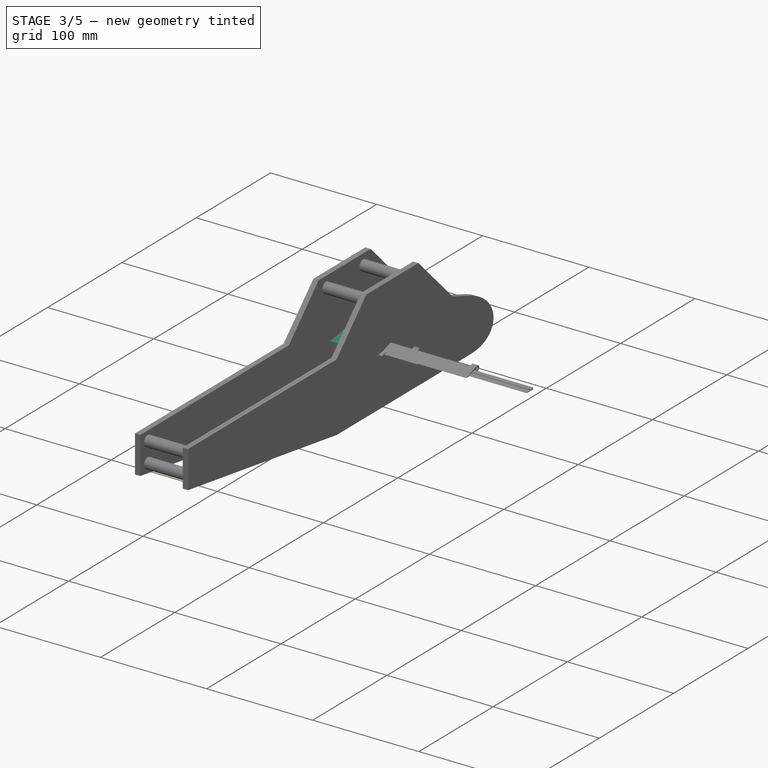
[diagram: stage 3 of 5 — iso view after this stage's code; geometry added in this stage tinted green]
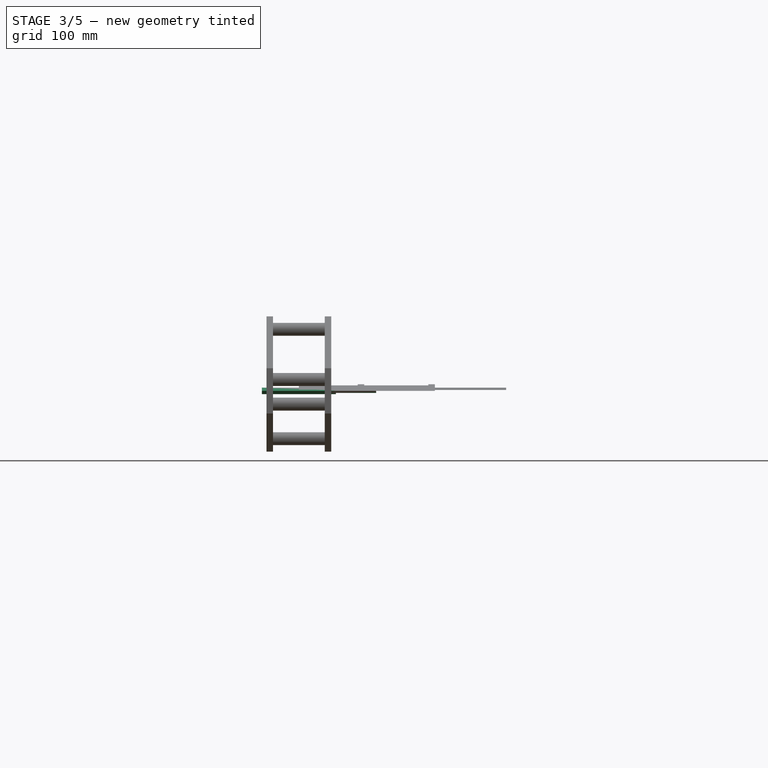
[diagram: stage 3 of 5 — front view after this stage's code; geometry added in this stage tinted green]
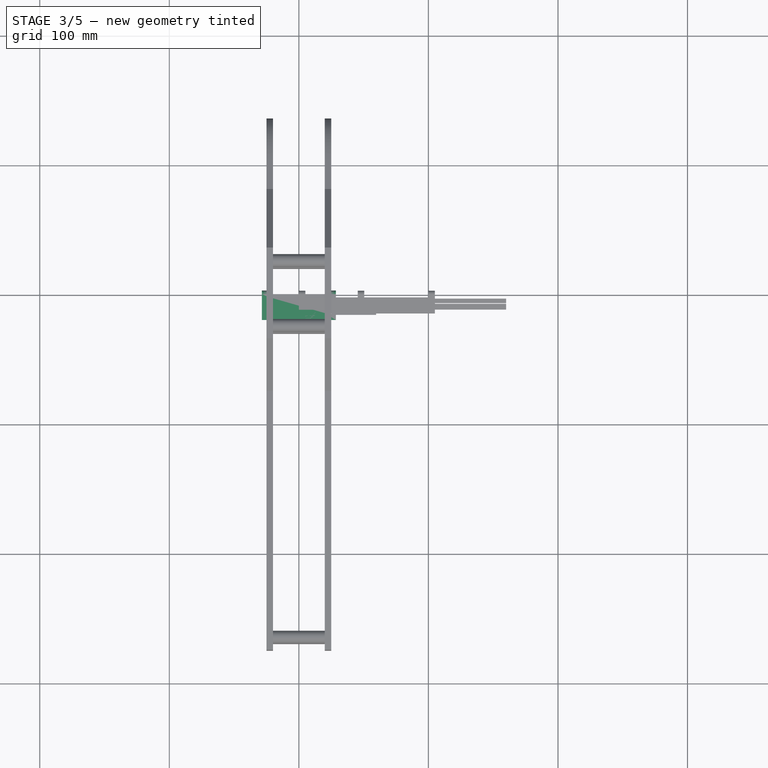
[diagram: stage 3 of 5 — top view after this stage's code; geometry added in this stage tinted green]
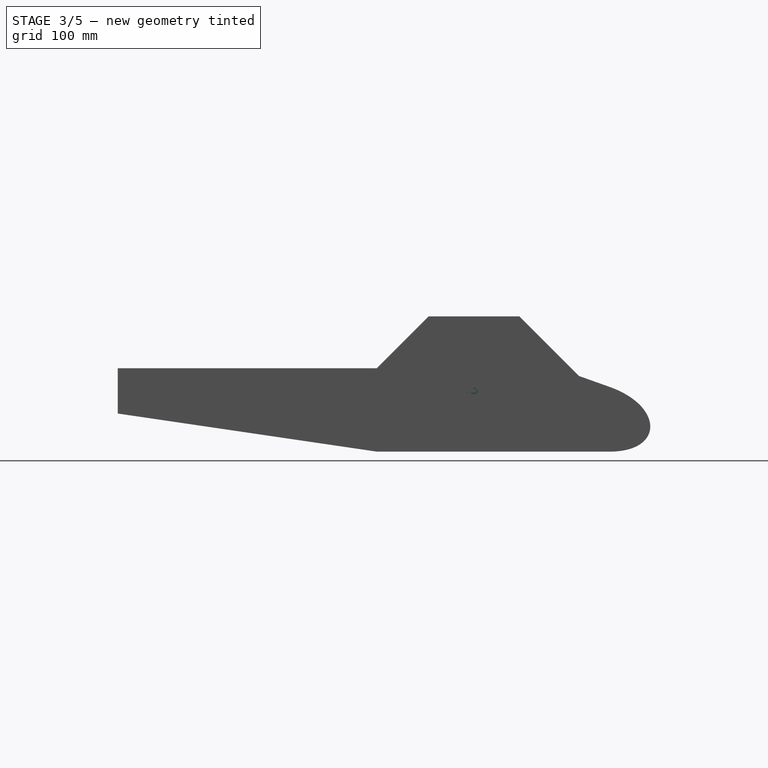
[diagram: stage 3 of 5 — right view after this stage's code; geometry added in this stage tinted green]
FEATURE [Sketcher::SketchObject] Sketch
  ArcFitTolerance = 1e-06
  AttachmentSupport = -> [YZ_Plane]
  FullyConstrained = true
  MakeInternals = false
  MapMode = 5
  Placement = pos=(0,0,0) rot=(0.57735,0.57735,0.57735;2.0944rad)
  sketch-geometry (3):
    g0: ArcOfCircle CenterX=0.3125 CenterY=7.2e-15 CenterZ=0 NormalX=0 NormalY=0 NormalZ=1 AngleXU=0 Radius=2.51946 StartAngle=4.58803 EndAngle=7.97834
    g1: LineSegment StartX=-20 StartY=0 StartZ=0 EndX=0 EndY=2.5 EndZ=0
    g2: LineSegment StartX=-20 StartY=0 StartZ=0 EndX=-6.75e-14 EndY=-2.5 EndZ=0
  constraints (8):
    c: PointOnObject(g1,g-1)
    c: Equal(g1,g2)
    c: Coincident(g1,g2)
    c: DistanceX(g1,g-1) = 20
    c: DistanceY(g2,g1) = 5
    c: Coincident(g0,g2)
    c: Symmetric(g0,g0,g-1)
    c: Tangent(g0,g1) = 1.5708
FEATURE [PartDesign::Pad] Pad
  Direction = (1,0,0)
  Length = 57.1254
  Length2 = 10
  Midplane = true
  Placement = pos=(0,0,0) rot=(1,1,1;2.0944rad)
  Profile = -> Sketch
  ReferenceAxis = -> Sketch [N_Axis]
  Suppressed = false
  Type = 0
  expr: Length = VarSet003.Finwidth / 2 - VarSet.JointOffset
FEATURE [Sketcher::SketchObject] Sketch001
  ArcFitTolerance = 1e-06
  AttachmentSupport = -> [Pad]
  ExternalGeometry = -> [Pad]
  FullyConstrained = true
  MakeInternals = false
  MapMode = 5
  Placement = pos=(28.5627,0,0) rot=(0.57735,0.57735,0.57735;2.0944rad)
  sketch-geometry (1):
    g0: Circle CenterX=0.3125 CenterY=5.1e-15 CenterZ=0 NormalX=0 NormalY=0 NormalZ=1 AngleXU=0 Radius=2.51946
  constraints (2):
    c: Equal(g0,g-3)
    c: Coincident(g0,g-3)
FEATURE [PartDesign::Pocket] Pocket
  BaseFeature = -> Pad
  Direction = (-1,0,0)
  Length = 52.1254
  Length2 = 5
  Placement = pos=(0,0,0) rot=(1,1,1;2.0944rad)
  Profile = -> Sketch001
  ReferenceAxis = -> Sketch001 [N_Axis]
  Suppressed = false
  Type = 0
  expr: Length = VarSet003.Finwidth / 2 - VarSet.JointWidth - VarSet.JointOffset
FEATURE [Sketcher::SketchObject] Sketch002
  ArcFitTolerance = 1e-06
  AttachmentSupport = -> [Pocket]
  ExternalGeometry = -> [Pocket]
  FullyConstrained = true
  MakeInternals = false
  MapMode = 5
  Placement = pos=(-28.5627,0,0) rot=(0.57735,0.57735,-0.57735;4.18879rad)
  expr: Constraints[1] = VarSet.JointDiameter / 2
  sketch-geometry (1):
    g0: Circle CenterX=0.3125 CenterY=0 CenterZ=0 NormalX=0 NormalY=0 NormalZ=1 AngleXU=0 Radius=1.56
  constraints (2):
    c: Coincident(g0,g-3)
    c: Radius(g0) = 1.56
FEATURE [PartDesign::Pocket] Pocket001
  BaseFeature = -> Pocket
  Direction = (1,0,0)
  Length = 5
  Length2 = 5
  Placement = pos=(0,0,0) rot=(1,1,1;2.0944rad)
  Profile = -> Sketch002
  ReferenceAxis = -> Sketch002 [N_Axis]
  Suppressed = false
  Type = 1
FEATURE [Sketcher::SketchObject] Sketch003
  ArcFitTolerance = 1e-06
  AttachmentSupport = -> [Pocket001]
  ExternalGeometry = -> [Pocket001]
  FullyConstrained = true
  MakeInternals = false
  MapMode = 5
  Placement = pos=(28.5627,0,0) rot=(0.57735,0.57735,0.57735;2.0944rad)
  expr: Constraints[15] = VarSet003.Attachment2Width
  expr: Constraints[16] = VarSet003.Attachment1Width
  expr: Constraints[23] = VarSet003.AttachmentEndDist
  expr: Constraints[24] = VarSet003.AttachmentCircDist
  sketch-geometry (10):
    g0: LineSegment StartX=-8.7075 StartY=-0.911559 StartZ=0 EndX=-3.2075 EndY=-1.59906 EndZ=0
    g1: LineSegment StartX=-8.7075 StartY=0.911559 StartZ=0 EndX=-3.2075 EndY=1.59906 EndZ=0
    g2: LineSegment StartX=-9 StartY=0.874996 StartZ=0 EndX=-16 EndY=0 EndZ=0
    g3: LineSegment StartX=-16 StartY=0 StartZ=0 EndX=-9 EndY=-0.874996 EndZ=0
    g4: LineSegment StartX=-8.7075 StartY=0.911559 StartZ=0 EndX=-8.7075 EndY=-0.911559 EndZ=0
    g5: LineSegment StartX=-3.2075 StartY=1.59906 StartZ=0 EndX=-3.2075 EndY=-1.59906 EndZ=0
    g6: GeomPoint X=-8.7075 Y=0 Z=0
    g7: LineSegment StartX=-9 StartY=0.874996 StartZ=0 EndX=-9 EndY=-0.874996 EndZ=0
    g8: GeomPoint X=-9 Y=0 Z=0
    g9: LineSegment [constr] StartX=-9 StartY=0.874996 StartZ=0 EndX=-8.7075 EndY=0.911559 EndZ=0
  constraints (25):
    c: Coincident(g2,g3)
    c: Coincident(g4,g1)
    c: Coincident(g4,g0)
    c: Vertical(g4)
    c: Coincident(g5,g0)
    c: Vertical(g5)
    c: Symmetric(g4,g4,g6)
    c: Coincident(g7,g2)
    c: Coincident(g7,g3)
    c: Vertical(g7)
    c: Coincident(g1,g5)
    c: Horizontal(g6,g-1)
    c: Symmetric(g7,g7,g8)
    c: PointOnObject(g2,g-1)
    c: PointOnObject(g8,g-1)
    c: DistanceX(g2,g8) = 7
    c: Distance(g6,g5) = 5.5
    c: Parallel(g1,g2)
    c: Parallel(g0,g3)
    c: Angle(g3,g2) = 0.248709
    c: Coincident(g9,g2)
    c: Coincident(g9,g1)
    c: Parallel(g9,g2)
    c: DistanceX(g-3,g2) = 4
    c: DistanceX(g1,g-4) = 3.52
FEATURE [PartDesign::Pad] Pad001
  BaseFeature = -> Pocket001
  Direction = (1,0,0)
  Length = 31.0627
  Length2 = 10
  Placement = pos=(0,0,0) rot=(1,1,1;2.0944rad)
  Profile = -> Sketch003
  ReferenceAxis = -> Sketch003 [N_Axis]
  Suppressed = false
  Type = 0
  expr: Length = VarSet003.AttachmentLength
FEATURE [Sketcher::SketchObject] Sketch004
  ArcFitTolerance = 1e-06
  AttachmentSupport = -> [Pad001]
  ExternalGeometry = -> [Pad001]
  FullyConstrained = true
  MakeInternals = false
  MapMode = 5
  Placement = pos=(-1e-16,-0.307692,2.46154) rot=(0.062018,0.062018,-0.996146;1.57466rad)
  expr: Constraints[0] = VarSet.FinControlHoleDiameter
  expr: Constraints[1] = VarSet.FinControlHoleYDist
  expr: Constraints[2] = VarSet.FinControlHoleXDist
  sketch-geometry (1):
    g0: Circle CenterX=14.8456 CenterY=23.5627 CenterZ=0 NormalX=0 NormalY=0 NormalZ=1 AngleXU=0 Radius=1.5
  constraints (3):
    c: Diameter(g0) = 3
    c: Distance(g0,g-3) = 5
    c: DistanceX(g0,g-3) = 5
FEATURE [PartDesign::Pocket] Pocket002
  BaseFeature = -> Pad001
  Direction = (1.1e-15,0.124035,-0.992278)
  Length = 2
  Length2 = 5
  Placement = pos=(0,0,0) rot=(1,1,1;2.0944rad)
  Profile = -> Sketch004
  ReferenceAxis = -> Sketch004 [N_Axis]
  Suppressed = false
  Type = 0
FEATURE [App::VarSet] VarSet
  FinControlHoleDiameter = 3
  FinControlHoleXDist = 5
  FinControlHoleYDist = 5
  JointDiameter = 3.12
  JointFinHeight = 4.12
  JointOffset = 5
  JointWidth = 5
  PlaneWallThickness = 5
  PlaneWidth = 50
  expr: JointFinHeight = JointDiameter + 1 mm
FEATURE [Sketcher::SketchObject] Sketch005
  ArcFitTolerance = 1e-06
  AttachmentSupport = -> [YZ_Plane001]
  FullyConstrained = true
  MakeInternals = false
  MapMode = 5
  Placement = pos=(0,0,0) rot=(0.57735,0.57735,0.57735;2.0944rad)
  sketch-geometry (3):
    g0: ArcOfCircle CenterX=0.3125 CenterY=7e-15 CenterZ=0 NormalX=0 NormalY=0 NormalZ=1 AngleXU=0 Radius=2.51946 StartAngle=4.58803 EndAngle=7.97834
    g1: LineSegment StartX=-20 StartY=0 StartZ=0 EndX=-4.62e-14 EndY=2.5 EndZ=0
    g2: LineSegment StartX=-20 StartY=0 StartZ=0 EndX=-6.75e-14 EndY=-2.5 EndZ=0
  constraints (8):
    c: PointOnObject(g1,g-1)
    c: Equal(g1,g2)
    c: Coincident(g1,g2)
    c: DistanceX(g1,g-1) = 20
    c: Coincident(g0,g2)
    c: Symmetric(g0,g0,g-1)
    c: DistanceY(g0,g0) = 5
    c: Tangent(g0,g1) = 1.5708
FEATURE [PartDesign::Pad] Pad002
  Direction = (1,0,0)
  Length = 57.1254
  Length2 = 10
  Midplane = true
  Placement = pos=(0,0,0) rot=(1,1,1;2.0944rad)
  Profile = -> Sketch005
  ReferenceAxis = -> Sketch005 [N_Axis]
  Suppressed = false
  Type = 0
  expr: Length = VarSet003.Finwidth / 2 - VarSet.JointOffset
FEATURE [Sketcher::SketchObject] Sketch006
  ArcFitTolerance = 1e-06
  AttachmentSupport = -> [Pad002]
  ExternalGeometry = -> [Pad002]
  FullyConstrained = true
  MakeInternals = false
  MapMode = 5
  Placement = pos=(-28.5627,0,0) rot=(0.57735,0.57735,-0.57735;4.18879rad)
  sketch-geometry (1):
    g0: Circle CenterX=0.3125 CenterY=2.2e-15 CenterZ=0 NormalX=0 NormalY=0 NormalZ=1 AngleXU=0 Radius=2.51946
  constraints (2):
    c: Equal(g0,g-3)
    c: Coincident(g0,g-3)
FEATURE [PartDesign::Pocket] Pocket003
  BaseFeature = -> Pad002
  Direction = (1,0,0)
  Length = 52.1254
  Length2 = 5
  Placement = pos=(0,0,0) rot=(1,1,1;2.0944rad)
  Profile = -> Sketch006
  ReferenceAxis = -> Sketch006 [N_Axis]
  Suppressed = false
  Type = 0
  expr: Length = VarSet003.Finwidth / 2 - VarSet.JointWidth - VarSet.JointOffset
FEATURE [Sketcher::SketchObject] Sketch007
  ArcFitTolerance = 1e-06
  AttachmentSupport = -> [Pocket003]
  ExternalGeometry = -> [Pocket003]
  FullyConstrained = true
  MakeInternals = false
  MapMode = 5
  Placement = pos=(-28.5627,0,0) rot=(0.57735,0.57735,-0.57735;4.18879rad)
  expr: Constraints[14] = VarSet003.AttachmentEndDist
  expr: Constraints[16] = VarSet003.Attachment2Width
  expr: Constraints[17] = VarSet003.Attachment1Width
  expr: Constraints[24] = VarSet003.AttachmentCircDist
  sketch-geometry (10):
    g0: LineSegment StartX=-8.7075 StartY=-0.91156 StartZ=0 EndX=-3.2075 EndY=-1.59906 EndZ=0
    g1: LineSegment StartX=-8.7075 StartY=0.91156 StartZ=0 EndX=-3.2075 EndY=1.59906 EndZ=0
    g2: LineSegment StartX=-9 StartY=0.874998 StartZ=0 EndX=-16 EndY=0 EndZ=0
    g3: LineSegment StartX=-16 StartY=0 StartZ=0 EndX=-9 EndY=-0.874998 EndZ=0
    g4: LineSegment StartX=-8.7075 StartY=0.91156 StartZ=0 EndX=-8.7075 EndY=-0.91156 EndZ=0
    g5: LineSegment StartX=-3.2075 StartY=1.59906 StartZ=0 EndX=-3.2075 EndY=-1.59906 EndZ=0
    g6: GeomPoint X=-8.7075 Y=0 Z=0
    g7: LineSegment StartX=-9 StartY=0.874998 StartZ=0 EndX=-9 EndY=-0.874998 EndZ=0
    g8: GeomPoint X=-9 Y=0 Z=0
    g9: LineSegment [constr] StartX=-9 StartY=0.874998 StartZ=0 EndX=-8.7075 EndY=0.91156 EndZ=0
  constraints (25):
    c: Coincident(g2,g3)
    c: Coincident(g4,g1)
    c: Coincident(g4,g0)
    c: Vertical(g4)
    c: Coincident(g5,g0)
    c: Vertical(g5)
    c: Symmetric(g4,g4,g6)
    c: Coincident(g7,g2)
    c: Coincident(g7,g3)
    c: Vertical(g7)
    c: Coincident(g1,g5)
    c: Horizontal(g6,g-1)
    c: Symmetric(g7,g7,g8)
    c: PointOnObject(g2,g-1)
    c: DistanceX(g-3,g2) = 4
    c: PointOnObject(g8,g-1)
    c: DistanceX(g2,g8) = 7
    c: Distance(g6,g5) = 5.5
    c: Parallel(g1,g2)
    c: Parallel(g0,g3)
    c: Angle(g3,g2) = 0.248709
    c: Coincident(g9,g2)
    c: Coincident(g9,g1)
    c: Parallel(g9,g2)
    c: DistanceX(g1,g-4) = 3.52
FEATURE [PartDesign::Pocket] Pocket004
  BaseFeature = -> Pocket003
  Direction = (1,0,0)
  Length = 31.0627
  Length2 = 5
  Placement = pos=(0,0,0) rot=(1,1,1;2.0944rad)
  Profile = -> Sketch007
  ReferenceAxis = -> Sketch007 [N_Axis]
  Suppressed = false
  Type = 0
  expr: Length = VarSet003.AttachmentLength
FEATURE [Sketcher::SketchObject] Sketch008
  ArcFitTolerance = 1e-06
  AttachmentSupport = -> [Pocket004]
  ExternalGeometry = -> [Pocket004]
  FullyConstrained = true
  MakeInternals = false
  MapMode = 5
  Placement = pos=(28.5627,0,0) rot=(0.57735,0.57735,0.57735;2.0944rad)
  expr: Constraints[0] = VarSet.JointDiameter
  sketch-geometry (1):
    g0: Circle CenterX=0.3125 CenterY=0 CenterZ=0 NormalX=0 NormalY=0 NormalZ=1 AngleXU=0 Radius=1.56
  constraints (2):
    c: Diameter(g0) = 3.12
    c: Coincident(g0,g-3)
FEATURE [PartDesign::Pocket] Pocket005
  BaseFeature = -> Pocket004
  Direction = (-1,0,0)
  Length = 5
  Length2 = 5
  Placement = pos=(0,0,0) rot=(1,1,1;2.0944rad)
  Profile = -> Sketch008
  ReferenceAxis = -> Sketch008 [N_Axis]
  Suppressed = false
  Type = 0
FEATURE [Sketcher::SketchObject] Sketch009
  ArcFitTolerance = 1e-06
  AttachmentSupport = -> [Pocket005]
  ExternalGeometry = -> [Pocket005]
  FullyConstrained = true
  MakeInternals = false
  MapMode = 5
  Placement = pos=(-1e-16,-0.307692,2.46154) rot=(0.062018,0.062018,-0.996146;1.57466rad)
  expr: Constraints[7] = VarSet003.AttachmentLength + VarSet.JointOffset
  sketch-geometry (3):
    g0: LineSegment StartX=4.68991 StartY=28.5627 StartZ=0 EndX=19.8456 EndY=7.5 EndZ=0
    g1: LineSegment StartX=4.68991 StartY=28.5627 StartZ=0 EndX=19.8456 EndY=28.5627 EndZ=0
    g2: LineSegment StartX=19.8456 StartY=28.5627 StartZ=0 EndX=19.8456 EndY=7.5 EndZ=0
  constraints (8):
    c: Coincident(g0,g1)
    c: Coincident(g1,g2)
    c: Coincident(g2,g0)
    c: Vertical(g2)
    c: Coincident(g1,g-3)
    c: Horizontal(g0,g-3)
    c: DistanceX(g-3,g0) = 5
    c: Distance(g0,g-4) = 36.0627
FEATURE [PartDesign::Pocket] Pocket006
  BaseFeature = -> Pocket005
  Direction = (1.1e-15,0.124035,-0.992278)
  Length = 1
  Length2 = 5
  Placement = pos=(0,0,0) rot=(1,1,1;2.0944rad)
  Profile = -> Sketch009
  ReferenceAxis = -> Sketch009 [N_Axis]
  Suppressed = false
  Type = 1
FEATURE [PartDesign::Body] Body001  label="RudderFin-Bottom"
  AllowCompound = false
  Group = -> [Sketch005,Pad002,Sketch006,Pocket003,Sketch007,Pocket004,Sketch008,Pocket005,Sketch009,Pocket006,Sketch055,Pocket027]
  Origin = -> Origin001
  Tip = -> Pocket027
FEATURE [Sketcher::SketchObject] Sketch056
  ArcFitTolerance = 1e-06
  AttachmentSupport = -> [Pocket002]
  ExternalGeometry = -> [Pocket002]
  FullyConstrained = true
  MakeInternals = false
  MapMode = 5
  Placement = pos=(28.5627,0,0) rot=(0.57735,0.57735,0.57735;2.0944rad)
  sketch-geometry (4):
    g0: ArcOfCircle CenterX=0.3125 CenterY=-4.3e-15 CenterZ=0 NormalX=0 NormalY=0 NormalZ=1 AngleXU=0 Radius=2.51946 StartAngle=1.69515 EndAngle=4.58803
    g1: LineSegment StartX=-7.14e-14 StartY=-2.5 StartZ=0 EndX=-2.20696 EndY=-2.22413 EndZ=0
    g2: LineSegment StartX=-2.20696 StartY=2.22413 StartZ=0 EndX=-7.1e-15 EndY=2.5 EndZ=0
    g3: LineSegment StartX=-2.20696 StartY=2.22413 StartZ=0 EndX=-2.20696 EndY=-2.22413 EndZ=0
  constraints (11):
    c: Coincident(g0,g-4)
    c: Coincident(g0,g-5)
    c: Equal(g0,g-3)
    c: Coincident(g2,g0)
    c: PointOnObject(g3,g-4)
    c: PointOnObject(g3,g-5)
    c: Tangent(g3,g0)
    c: Coincident(g3,g2)
    c: Coincident(g1,g3)
    c: Coincident(g1,g0)
    c: Vertical(g3)
FEATURE [PartDesign::Pocket] Pocket028
  BaseFeature = -> Pocket002
  Direction = (-1,1e-15,1e-16)
  Length = 0
  Length2 = 5
  Placement = pos=(0,0,0) rot=(1,1,1;2.0944rad)
  Profile = -> Sketch056
  ReferenceAxis = -> Sketch056 [N_Axis]
  Suppressed = false
  Type = 3
  UpToFace = -> Pocket002 [Face4]
FEATURE [PartDesign::Body] Body  label="RudderFin-Top"
  AllowCompound = false
  Group = -> [Sketch,Pad,Sketch001,Pocket,Sketch002,Pocket001,Sketch003,Pad001,Sketch004,Pocket002,Sketch056,Pocket028]
  Origin = -> Origin
  Tip = -> Pocket028
FEATURE [Sketcher::SketchObject] Sketch057
  ArcFitTolerance = 1e-06
  FullyConstrained = true
  MakeInternals = false
  MapMode = 5
  Placement = pos=(3.7e-15,0,0) rot=(0.57735,0.57735,-0.57735;4.18879rad)
  sketch-geometry (4):
    g0: ArcOfCircle CenterX=1.8199e-12 CenterY=-2.56 CenterZ=0 NormalX=0 NormalY=0 NormalZ=1 AngleXU=0 Radius=2.56 StartAngle=1.5708 EndAngle=4.05452
    g1: LineSegment StartX=-1.56526 StartY=-4.58572 StartZ=0 EndX=-2.56 EndY=-4.24619 EndZ=0
    g2: LineSegment StartX=-2.56 StartY=0 StartZ=0 EndX=-2.56 EndY=-4.24619 EndZ=0
    g3: LineSegment StartX=-2.56 StartY=0 StartZ=0 EndX=1.8e-15 EndY=-6.213e-13 EndZ=0
  constraints (11):
    c: Vertical(g2)
    c: Coincident(g0,g-5)
    c: Coincident(g-4,g0)
    c: Equal(g0,g-3)
    c: PointOnObject(g2,g-5)
    c: PointOnObject(g2,g-4)
    c: Coincident(g3,g2)
    c: Coincident(g3,g0)
    c: Coincident(g1,g2)
    c: Coincident(g1,g0)
    c: Tangent(g2,g0)
FEATURE [PartDesign::Pocket] Pocket029
  BaseFeature = -> Pocket019
  Direction = (1,-2e-16,-2e-16)
  Length = 0
  Length2 = 5
  Placement = pos=(0,0,0) rot=(1,1,1;2.0944rad)
  Profile = -> Sketch057
  ReferenceAxis = -> Sketch057 [N_Axis]
  Suppressed = false
  Type = 3
  UpToFace = -> Pocket019 [Face2]
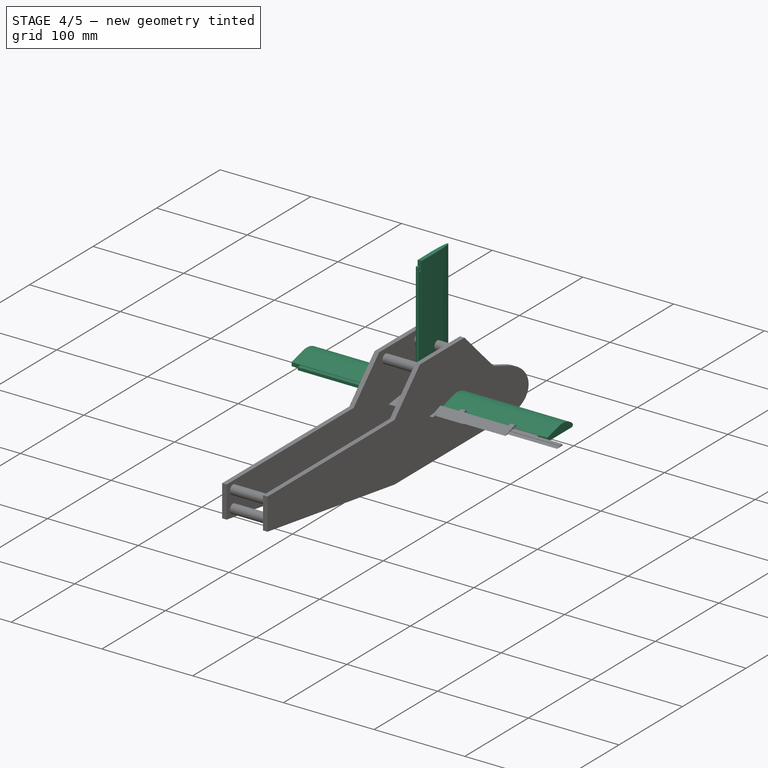
[diagram: stage 4 of 5 — iso view after this stage's code; geometry added in this stage tinted green]
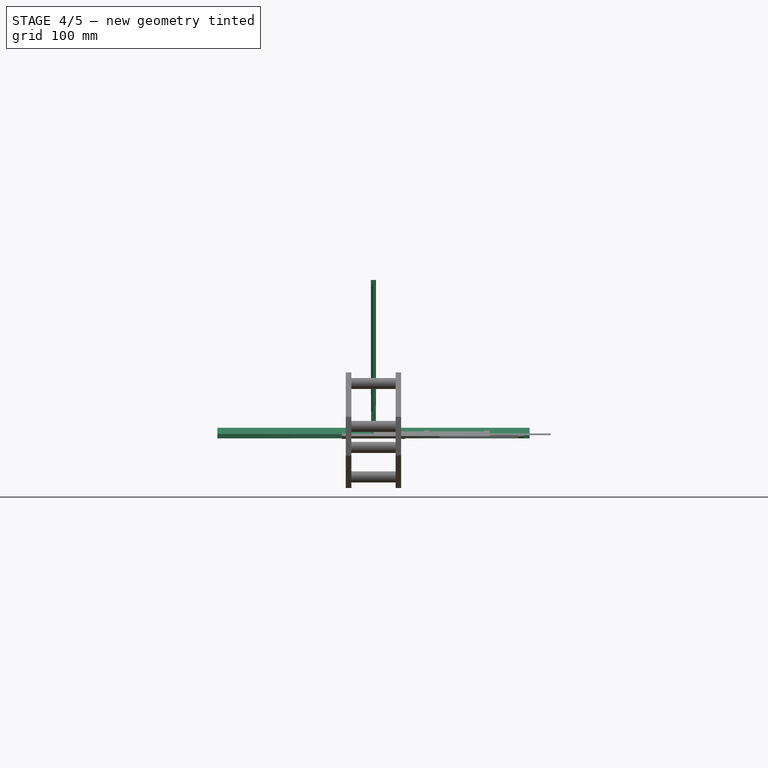
[diagram: stage 4 of 5 — front view after this stage's code; geometry added in this stage tinted green]
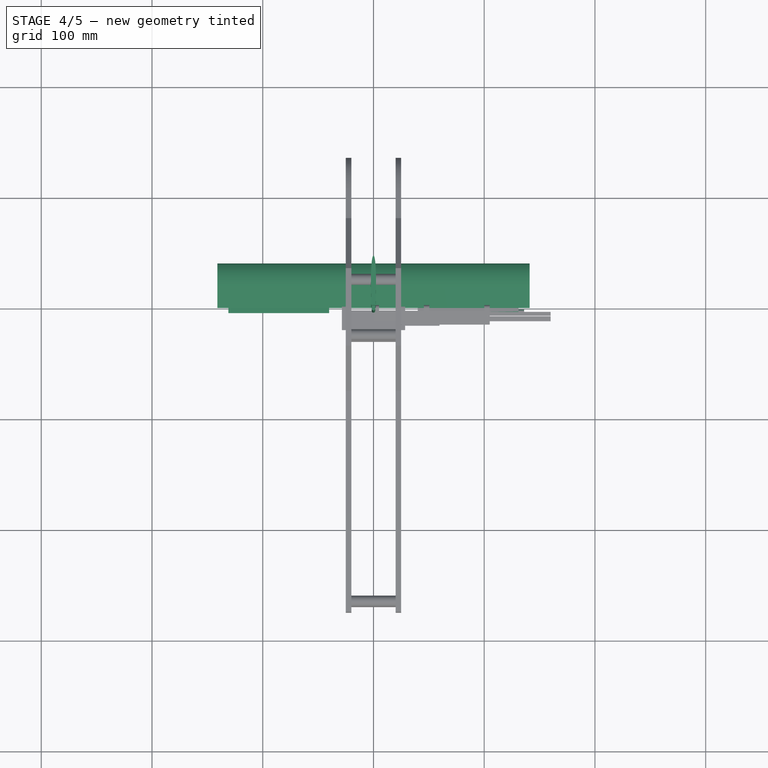
[diagram: stage 4 of 5 — top view after this stage's code; geometry added in this stage tinted green]
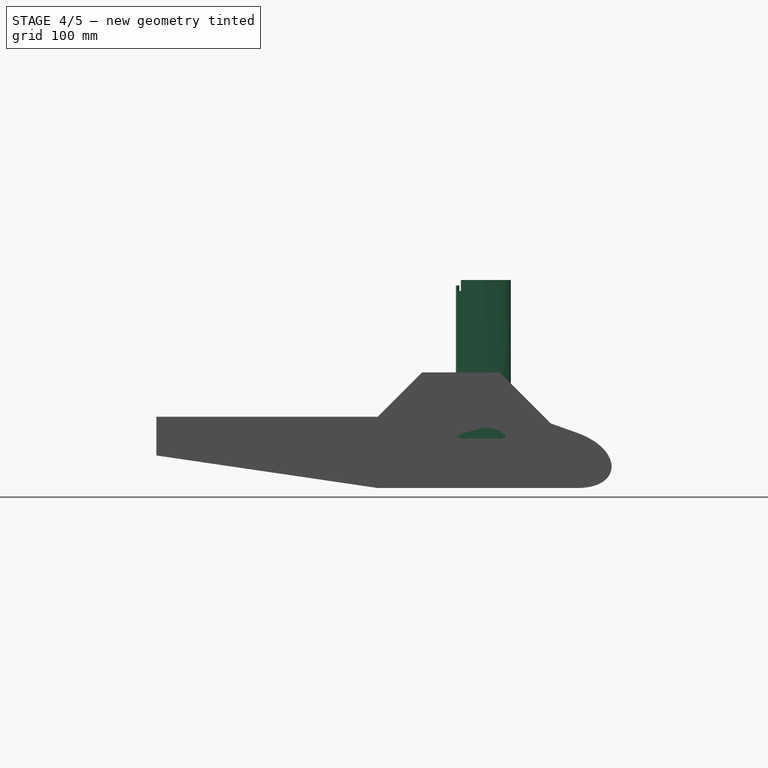
[diagram: stage 4 of 5 — right view after this stage's code; geometry added in this stage tinted green]
FEATURE [Sketcher::SketchObject] Sketch010
  ArcFitTolerance = 1e-06
  AttachmentSupport = -> [XY_Plane002]
  FullyConstrained = true
  MakeInternals = false
  MapMode = 5
  expr: Constraints[30] = VarSet003.JointFinHeight
  expr: Constraints[31] = VarSet003.Length
  sketch-geometry (16):
    g0: BSplineCurve PolesCount=3 KnotsCount=2 Degree=2 IsPeriodic=0
    g1: BSplineCurve PolesCount=3 KnotsCount=2 Degree=2 IsPeriodic=0
    g2: Circle [constr] CenterX=0 CenterY=45 CenterZ=0 NormalX=0 NormalY=0 NormalZ=1 AngleXU=0 Radius=1
    g3: Circle [constr] CenterX=-3.06 CenterY=43.53 CenterZ=0 NormalX=0 NormalY=0 NormalZ=1 AngleXU=0 Radius=1
    g4: Circle [constr] CenterX=-2.06 CenterY=0 CenterZ=0 NormalX=0 NormalY=0 NormalZ=1 AngleXU=0 Radius=1
    g5: GeomPoint [constr] X=0 Y=45 Z=0
    g6: GeomPoint [constr] X=-2.06 Y=0 Z=0
    g7: Circle [constr] CenterX=0 CenterY=45 CenterZ=0 NormalX=0 NormalY=0 NormalZ=1 AngleXU=0 Radius=1
    g8: Circle [constr] CenterX=3.06 CenterY=43.53 CenterZ=0 NormalX=0 NormalY=0 NormalZ=1 AngleXU=0 Radius=1
    g9: Circle [constr] CenterX=2.06 CenterY=0 CenterZ=0 NormalX=0 NormalY=0 NormalZ=1 AngleXU=0 Radius=1
    g10: GeomPoint [constr] X=0 Y=45 Z=0
    g11: GeomPoint [constr] X=2.06 Y=0 Z=0
    g12: LineSegment [constr] StartX=-3.06 StartY=43.53 StartZ=0 EndX=0 EndY=43.53 EndZ=0
    g13: LineSegment [constr] StartX=0 StartY=43.53 StartZ=0 EndX=3.06 EndY=43.53 EndZ=0
    g14: LineSegment StartX=-2.06 StartY=0 StartZ=0 EndX=2.06 EndY=0 EndZ=0
    g15: LineSegment [constr] StartX=0 StartY=0 StartZ=0 EndX=0 EndY=45 EndZ=0
  constraints (36):
    c: InternalAlignment(g2,g1)
    c: Weight(g2) = 1
    c: InternalAlignment(g3,g1)
    c: Equal(g3,g2)
    c: InternalAlignment(g4,g1)
    c: Equal(g4,g2)
    c: InternalAlignment(g5,g1)
    c: InternalAlignment(g6,g1)
    c: InternalAlignment(g7,g0)
    c: Weight(g7) = 1
    c: InternalAlignment(g8,g0)
    c: Equal(g8,g7)
    c: InternalAlignment(g9,g0)
    c: Equal(g9,g7)
    c: InternalAlignment(g10,g0)
    c: InternalAlignment(g11,g0)
    c: Horizontal(g1,g0)
    c: PointOnObject(g1,g-2)
    c: Coincident(g12,g3)
    c: PointOnObject(g12,g-2)
    c: Coincident(g13,g12)
    c: Coincident(g13,g8)
    c: Equal(g13,g12)
    c: DistanceX(g3,g12) = 3.06
    c: DistanceY(g12,g0) = 1.47
    c: Horizontal(g3,g8)
    c: Horizontal(g12)
    c: Coincident(g1,g0)
    c: Coincident(g14,g1)
    c: Coincident(g14,g0)
    c: DistanceX(g14,g14) = 4.12
    c: Distance(g0,g14) = 45
    c: Symmetric(g14,g14,g15)
    c: Coincident(g15,g0)
    c: Vertical(g15)
    c: Horizontal(g15,g-1)
FEATURE [PartDesign::Pad] Pad003
  Direction = (0,0,1)
  Length = 141
  Length2 = 10
  Profile = -> Sketch010
  ReferenceAxis = -> Sketch010 [N_Axis]
  Suppressed = false
  Type = 0
  expr: Length = VarSet003.Height
FEATURE [Sketcher::SketchObject] Sketch012
  ArcFitTolerance = 1e-06
  FullyConstrained = true
  MakeInternals = false
  MapMode = 5
  Placement = pos=(0,3.11e-14,140) rot=(0,0,1;0rad)
  sketch-geometry (1):
    g0: Circle CenterX=0 CenterY=-3.56 CenterZ=0 NormalX=0 NormalY=0 NormalZ=1 AngleXU=0 Radius=1.56
  constraints (3):
    c: Diameter(g0) = 3.12
    c: DistanceY(g0,g-1) = 3.56
    c: DistanceX(g0,g-1) = 0
FEATURE [PartDesign::Pad] Pad004
  BaseFeature = -> Pad003
  Direction = (0,0,1)
  Length = 5
  Length2 = 10
  Profile = -> Sketch012
  ReferenceAxis = -> Sketch012 [N_Axis]
  Suppressed = false
  Type = 0
FEATURE [Sketcher::SketchObject] Sketch017
  ArcFitTolerance = 1e-06
  FullyConstrained = true
  MakeInternals = false
  MapMode = 5
  Placement = pos=(0,1.5e-15,6.74911) rot=(1,0,0;3.14159rad)
  expr: Constraints[9] = VarSet003.JointFinHeight
  sketch-geometry (5):
    g0: LineSegment StartX=-2.06 StartY=0 StartZ=0 EndX=-2.06 EndY=-17 EndZ=0
    g1: LineSegment StartX=-2.06 StartY=-17 StartZ=0 EndX=2.06 EndY=-17 EndZ=0
    g2: LineSegment StartX=2.06 StartY=-17 StartZ=0 EndX=2.06 EndY=0 EndZ=0
    g3: LineSegment StartX=2.06 StartY=0 StartZ=0 EndX=-2.06 EndY=0 EndZ=0
    g4: GeomPoint [constr] X=0 Y=-8.5 Z=0
  constraints (13):
    c: Coincident(g0,g1)
    c: Coincident(g1,g2)
    c: Coincident(g2,g3)
    c: Coincident(g3,g0)
    c: Vertical(g0)
    c: Vertical(g2)
    c: Horizontal(g1)
    c: Horizontal(g3)
    c: Symmetric(g2,g0,g4)
    c: Distance(g0,g2) = 4.12
    c: PointOnObject(g4,g-2)
    c: PointOnObject(g2,g-3)
    c: PointOnObject(g1,g-4)
FEATURE [Sketcher::SketchObject] Sketch013
  ArcFitTolerance = 1e-06
  FullyConstrained = true
  MakeInternals = false
  MapMode = 5
  Placement = pos=(0,0,0) rot=(1,0,0;1.5708rad)
  expr: Constraints[25] = VarSet003.Finwidth - VarSet.JointWidth * 2 - VarSet.JointOffset * 2
  expr: Constraints[5] = VarSet.JointWidth + VarSet.JointOffset
  expr: Constraints[9] = VarSet.JointDiameter
  sketch-geometry (11):
    g0: LineSegment StartX=-1.56 StartY=131 StartZ=0 EndX=-1.56 EndY=26.7491 EndZ=0
    g1: LineSegment StartX=-1.56 StartY=26.7491 StartZ=0 EndX=1.56 EndY=26.7491 EndZ=0
    g2: LineSegment StartX=1.56 StartY=26.7491 StartZ=0 EndX=1.56 EndY=131 EndZ=0
    g3: LineSegment StartX=1.56 StartY=131 StartZ=0 EndX=-1.56 EndY=131 EndZ=0
    g4: GeomPoint [constr] X=-2.06 Y=26.7491 Z=0
    g5: GeomPoint [constr] X=2.06 Y=26.7491 Z=0
    g6: GeomPoint X=0 Y=26.7491 Z=0
    g7: LineSegment [constr] StartX=0 StartY=26.7491 StartZ=0 EndX=-1.56 EndY=26.7491 EndZ=0
    g8: LineSegment [constr] StartX=0 StartY=26.7491 StartZ=0 EndX=1.56 EndY=26.7491 EndZ=0
    g9: LineSegment [constr] StartX=-2.06 StartY=26.7491 StartZ=0 EndX=0 EndY=26.7491 EndZ=0
    g10: LineSegment [constr] StartX=0 StartY=26.7491 StartZ=0 EndX=2.06 EndY=26.7491 EndZ=0
  constraints (26):
    c: Coincident(g0,g1)
    c: Coincident(g1,g2)
    c: Coincident(g2,g3)
    c: Coincident(g3,g0)
    c: Horizontal(g3)
    c: Distance(g3,g-3) = 10
    c: Horizontal(g1)
    c: Vertical(g0)
    c: Vertical(g2)
    c: Distance(g2,g0) = 3.12
    c: PointOnObject(g4,g-4)
    c: PointOnObject(g5,g-5)
    c: Horizontal(g4,g5)
    c: Coincident(g7,g6)
    c: Coincident(g8,g6)
    c: Coincident(g7,g0)
    c: Coincident(g8,g1)
    c: Equal(g7,g8)
    c: Coincident(g9,g4)
    c: Coincident(g9,g6)
    c: Coincident(g10,g9)
    c: Coincident(g10,g5)
    c: Equal(g9,g10)
    c: Horizontal(g6,g4)
    c: Horizontal(g6,g0)
    c: DistanceY(g0,g0) = 104.251
FEATURE [PartDesign::Pad] Pad006
  BaseFeature = -> Pad004
  Direction = (0,-1,0)
  Length = 4.62
  Length2 = 10
  Profile = -> Sketch013
  ReferenceAxis = -> Sketch013 [N_Axis]
  Suppressed = false
  Type = 0
  expr: Length = VarSet003.JointFinHeight + 0.5 mm
FEATURE [Sketcher::SketchObject] Sketch014
  ArcFitTolerance = 1e-06
  AttachmentSupport = -> [Pad006]
  ExternalGeometry = -> [Pad006]
  FullyConstrained = true
  MakeInternals = false
  MapMode = 5
  Placement = pos=(0,0,26.7491) rot=(1,0,0;3.14159rad)
  expr: Constraints[0] = VarSet.JointDiameter
  sketch-geometry (3):
    g0: Circle CenterX=0 CenterY=3.06 CenterZ=0 NormalX=0 NormalY=0 NormalZ=1 AngleXU=0 Radius=1.56
    g1: GeomPoint [constr] X=0 Y=4.62 Z=0
    g2: GeomPoint X=0 Y=3.06 Z=0
  constraints (5):
    c: Diameter(g0) = 3.12
    c: Symmetric(g-3,g-3,g1)
    c: Vertical(g2,g1)
    c: Coincident(g0,g2)
    c: PointOnObject(g1,g0)
FEATURE [PartDesign::Pad] Pad007
  BaseFeature = -> Pad006
  Direction = (0,0,-1)
  Length = 5
  Length2 = 10
  Profile = -> Sketch014
  ReferenceAxis = -> Sketch014 [N_Axis]
  Suppressed = false
  Type = 0
FEATURE [Sketcher::SketchObject] Sketch015
  ArcFitTolerance = 1e-06
  AttachmentSupport = -> [Pad007]
  ExternalGeometry = -> [Pad007]
  FullyConstrained = true
  MakeInternals = false
  MapMode = 5
  Placement = pos=(0,0,131) rot=(0,0,1;0rad)
  expr: Constraints[0] = VarSet.JointDiameter
  sketch-geometry (3):
    g0: Circle CenterX=-1e-16 CenterY=-3.06 CenterZ=0 NormalX=0 NormalY=0 NormalZ=1 AngleXU=0 Radius=1.56
    g1: GeomPoint [constr] X=-1e-16 Y=-4.62 Z=0
    g2: GeomPoint X=-1e-16 Y=-3.06 Z=0
  constraints (5):
    c: Diameter(g0) = 3.12
    c: Symmetric(g-4,g-3,g1)
    c: Vertical(g0,g1)
    c: Coincident(g0,g2)
    c: PointOnObject(g1,g0)
FEATURE [PartDesign::Pad] Pad008
  BaseFeature = -> Pad007
  Direction = (0,0,1)
  Length = 5
  Length2 = 10
  Profile = -> Sketch015
  ReferenceAxis = -> Sketch015 [N_Axis]
  Suppressed = false
  Type = 0
FEATURE [PartDesign::Pad] Pad009
  BaseFeature = -> Pad008
  Direction = (0,0,-1)
  Length = 6.74911
  Length2 = 10
  Profile = -> Sketch017
  ReferenceAxis = -> Sketch017 [N_Axis]
  Suppressed = false
  Type = 0
  expr: Length = VarSet003.NotchHeight
FEATURE [Sketcher::SketchObject] Sketch018
  ArcFitTolerance = 1e-06
  AttachmentSupport = -> [YZ_Plane003]
  FullyConstrained = true
  MakeInternals = false
  MapMode = 5
  Placement = pos=(0,0,0) rot=(0.57735,0.57735,0.57735;2.0944rad)
  expr: Constraints[0] = VarSet.JointFinHeight
  expr: Constraints[12] = VarSet.JointFinHeight / 2
  expr: Constraints[20] = VarSet001.StraightAngle
  expr: Constraints[23] = VarSet001.Length
  expr: Constraints[24] = VarSet001.Length * sin(VarSet001.StraightAngle / 8)
  expr: Constraints[8] = VarSet001.StraightLength
  sketch-geometry (10):
    g0: ArcOfCircle CenterX=23.6315 CenterY=-16.134 CenterZ=0 NormalX=0 NormalY=0 NormalZ=1 AngleXU=0 Radius=23.6904 StartAngle=0.839178 EndAngle=1.8326
    g1: ArcOfCircle CenterX=38.0972 CenterY=-0.0223637 CenterZ=0 NormalX=0 NormalY=0 NormalZ=1 AngleXU=0 Radius=2.03764 StartAngle=4.71239 EndAngle=7.12236
    g2: LineSegment StartX=0 StartY=-2.06 StartZ=0 EndX=38.0972 EndY=-2.06 EndZ=0
    g3: LineSegment StartX=0 StartY=2.06 StartZ=0 EndX=17.5 EndY=6.74911 EndZ=0
    g4: LineSegment StartX=0 StartY=2.06 StartZ=0 EndX=0 EndY=-2.06 EndZ=0
    g5: LineSegment [constr] StartX=17.5 StartY=6.74911 StartZ=0 EndX=17.5 EndY=-2.06 EndZ=0
    g6: GeomPoint [constr] X=40 Y=-0.751237 Z=0
    g7: LineSegment [constr] StartX=39.4585 StartY=1.49383 StartZ=0 EndX=38.0972 EndY=-2.06 EndZ=0
    g8: LineSegment [constr] StartX=38.0972 StartY=-2.06 StartZ=0 EndX=40 EndY=-0.751237 EndZ=0
    g9: LineSegment [constr] StartX=40 StartY=-0.751237 StartZ=0 EndX=39.4585 EndY=1.49383 EndZ=0
  constraints (25):
    c: DistanceY(g2,g3) = 4.12
    c: Coincident(g4,g2)
    c: Horizontal(g2)
    c: Tangent(g0,g1) = -1.5708
    c: Tangent(g2,g1) = -1.5708
    c: Coincident(g5,g3)
    c: PointOnObject(g5,g2)
    c: Vertical(g5)
    c: Distance(g3,g5) = 17.5
    c: Coincident(g4,g3)
    c: Vertical(g4)
    c: PointOnObject(g3,g-2)
    c: DistanceY(g-1,g3) = 2.06
    c: Coincident(g7,g0)
    c: Coincident(g7,g1)
    c: Coincident(g8,g1)
    c: Coincident(g8,g6)
    c: Coincident(g9,g6)
    c: Coincident(g9,g0)
    c: Equal(g8,g9)
    c: Angle(g2,g3) = 0.261799
    c: Tangent(g0,g3) = 1.5708
    c: PointOnObject(g6,g1)
    c: Distance(g6,g4) = 40
    c: DistanceY(g1,g6) = 1.30876
FEATURE [PartDesign::Pad] Pad010
  Direction = (1,0,0)
  Length = 282
  Length2 = 10
  Midplane = true
  Placement = pos=(0,0,0) rot=(1,1,1;2.0944rad)
  Profile = -> Sketch018
  ReferenceAxis = -> Sketch018 [N_Axis]
  Suppressed = false
  Type = 0
  expr: Length = VarSet001.Width
FEATURE [Sketcher::SketchObject] Sketch019
  ArcFitTolerance = 1e-06
  AttachmentSupport = -> [Pad010]
  ExternalGeometry = -> [Pad010]
  FullyConstrained = true
  MakeInternals = false
  MapMode = 5
  Placement = pos=(0,3e-16,0) rot=(0.57735,0.57735,-0.57735;2.0944rad)
  expr: Constraints[14] = VarSet001.FinWidth - VarSet.JointWidth * 2 - VarSet.JointOffset * 2
  expr: Constraints[19] = VarSet.JointWidth + VarSet.JointOffset
  expr: Constraints[22] = VarSet.JointDiameter
  sketch-geometry (9):
    g0: LineSegment StartX=-1.56 StartY=131 StartZ=0 EndX=1.56 EndY=131 EndZ=0
    g1: LineSegment StartX=-1.56 StartY=40 StartZ=0 EndX=1.56 EndY=40 EndZ=0
    g2: LineSegment StartX=1.56 StartY=-40 StartZ=0 EndX=-1.56 EndY=-40 EndZ=0
    g3: LineSegment StartX=-1.56 StartY=-131 StartZ=0 EndX=1.56 EndY=-131 EndZ=0
    g4: LineSegment StartX=-1.56 StartY=40 StartZ=0 EndX=-1.56 EndY=131 EndZ=0
    g5: LineSegment StartX=1.56 StartY=131 StartZ=0 EndX=1.56 EndY=40 EndZ=0
    g6: LineSegment StartX=-1.56 StartY=-40 StartZ=0 EndX=-1.56 EndY=-131 EndZ=0
    g7: LineSegment StartX=1.56 StartY=-40 StartZ=0 EndX=1.56 EndY=-131 EndZ=0
    g8: GeomPoint [constr] X=1e-16 Y=-1.03e-14 Z=0
  constraints (24):
    c: Coincident(g6,g2)
    c: Coincident(g2,g7)
    c: Coincident(g6,g3)
    c: Coincident(g3,g7)
    c: Coincident(g0,g4)
    c: Coincident(g4,g1)
    c: Coincident(g0,g5)
    c: Coincident(g5,g1)
    c: Horizontal(g1)
    c: Horizontal(g0)
    c: Vertical(g5)
    c: Vertical(g4)
    c: Vertical(g6)
    c: Horizontal(g2)
    c: DistanceY(g3,g2) = 91
    c: Horizontal(g3)
    c: Equal(g6,g4)
    c: Symmetric(g2,g1,g8)
    c: Symmetric(g-4,g-3,g8)
    c: Distance(g-3,g3) = 10
    c: Vertical(g7)
    c: Equal(g3,g1)
    c: Distance(g7,g6) = 3.12
    c: Vertical(g1,g2)
FEATURE [PartDesign::Pad] Pad011
  BaseFeature = -> Pad010
  Direction = (0,-1,0)
  Length = 4.62
  Length2 = 10
  Placement = pos=(0,0,0) rot=(1,1,1;2.0944rad)
  Profile = -> Sketch019
  ReferenceAxis = -> Sketch019 [N_Axis]
  Suppressed = false
  Type = 0
  expr: Length = VarSet.JointFinHeight + 0.5 mm
FEATURE [Sketcher::SketchObject] Sketch020
  ArcFitTolerance = 1e-06
  AttachmentSupport = -> [Pad011]
  ExternalGeometry = -> [Pad011]
  FullyConstrained = true
  MakeInternals = false
  MapMode = 5
  Placement = pos=(131,0,2.88e-14) rot=(0.57735,0.57735,0.57735;2.0944rad)
  expr: Constraints[0] = VarSet.JointDiameter
  expr: Constraints[1] = VarSet.JointDiameter / 2
  sketch-geometry (2):
    g0: Circle CenterX=-3.06 CenterY=-6.34e-13 CenterZ=0 NormalX=0 NormalY=0 NormalZ=1 AngleXU=0 Radius=1.56
    g1: GeomPoint [constr] X=-1.5 Y=1.56 Z=0
  constraints (4):
    c: Diameter(g0) = 3.12
    c: Distance(g0,g-3) = 1.56
    c: Horizontal(g1,g-3)
    c: Symmetric(g1,g-4,g0)
FEATURE [PartDesign::Pad] Pad012
  BaseFeature = -> Pad011
  Direction = (1,0,0)
  Length = 5
  Length2 = 10
  Placement = pos=(0,0,0) rot=(1,1,1;2.0944rad)
  Profile = -> Sketch020
  ReferenceAxis = -> Sketch020 [N_Axis]
  Suppressed = false
  Type = 0
  expr: Length = VarSet.JointWidth
FEATURE [PartDesign::Body] Body003  label="Tail"
  AllowCompound = false
  Group = -> [Sketch018,Pad010,Sketch019,Pad011,Sketch020,Pad012,Sketch021,Pad013,Sketch022,Pad014,Sketch023,Pad005,Sketch024,Pocket009,Sketch053,Pocket025]
  Origin = -> Origin003
  Tip = -> Pocket025
FEATURE [Sketcher::SketchObject] Sketch054
  ArcFitTolerance = 1e-06
  AttachmentSupport = -> [Pad009]
  ExternalGeometry = -> [Pad009]
  FullyConstrained = true
  MakeInternals = false
  MapMode = 5
  Placement = pos=(0,0,26.7491) rot=(1,0,0;3.14159rad)
  sketch-geometry (4):
    g0: ArcOfCircle CenterX=0 CenterY=3.05998 CenterZ=0 NormalX=0 NormalY=0 NormalZ=1 AngleXU=0 Radius=1.56 StartAngle=9.94951e-06 EndAngle=3.14158
    g1: LineSegment StartX=1.56 StartY=4.62 StartZ=0 EndX=-1.56 EndY=4.62 EndZ=0
    g2: LineSegment StartX=-1.56 StartY=4.62 StartZ=0 EndX=-1.56 EndY=3.06 EndZ=0
    g3: LineSegment StartX=1.56 StartY=4.62 StartZ=0 EndX=1.56 EndY=3.06 EndZ=0
  constraints (9):
    c: Coincident(g0,g-7)
    c: Coincident(g0,g-5)
    c: Equal(g0,g-3)
    c: Coincident(g2,g0)
    c: Coincident(g2,g-7)
    c: Coincident(g1,g2)
    c: Coincident(g1,g-5)
    c: Coincident(g3,g0)
    c: Coincident(g3,g1)
FEATURE [PartDesign::Pocket] Pocket026
  BaseFeature = -> Pad009
  Direction = (0,0,1)
  Length = 5
  Length2 = 5
  Profile = -> Sketch054
  ReferenceAxis = -> Sketch054 [N_Axis]
  Suppressed = false
  Type = 1
FEATURE [PartDesign::Body] Body002  label="Rudder"
  AllowCompound = false
  Group = -> [Sketch010,Pad003,Sketch012,Pad004,Sketch013,Pad006,Sketch014,Pad007,Sketch015,Pad008,Sketch017,Pad009,Sketch054,Pocket026]
  Origin = -> Origin002
  Tip = -> Pocket026
FEATURE [Sketcher::SketchObject] Sketch055
  ArcFitTolerance = 1e-06
  AttachmentSupport = -> [Pocket006]
  ExternalGeometry = -> [Pocket006]
  FullyConstrained = true
  MakeInternals = false
  MapMode = 5
  Placement = pos=(-28.5627,0,0) rot=(0.57735,0.57735,-0.57735;4.18879rad)
  sketch-geometry (4):
    g0: ArcOfCircle CenterX=0.3125 CenterY=-6.7e-15 CenterZ=0 NormalX=0 NormalY=0 NormalZ=1 AngleXU=0 Radius=2.51946 StartAngle=1.69515 EndAngle=4.58803
    g1: LineSegment StartX=-2.20696 StartY=2.22413 StartZ=0 EndX=-2.20696 EndY=-2.22413 EndZ=0
    g2: LineSegment StartX=-2.20696 StartY=2.22413 StartZ=0 EndX=-5.73e-14 EndY=2.5 EndZ=0
    g3: LineSegment StartX=-2.20696 StartY=-2.22413 StartZ=0 EndX=-4e-14 EndY=-2.5 EndZ=0
  constraints (11):
    c: Coincident(g0,g-5)
    c: Coincident(g0,g-4)
    c: Equal(g0,g-3)
    c: PointOnObject(g1,g-4)
    c: PointOnObject(g1,g-5)
    c: Tangent(g1,g0)
    c: Coincident(g2,g1)
    c: Coincident(g2,g0)
    c: Coincident(g3,g1)
    c: Coincident(g3,g0)
    c: Vertical(g1)
FEATURE [PartDesign::Pocket] Pocket027
  BaseFeature = -> Pocket006
  Direction = (1,-1e-15,1e-16)
  Length = 0
  Length2 = 5
  Placement = pos=(0,0,0) rot=(1,1,1;2.0944rad)
  Profile = -> Sketch055
  ReferenceAxis = -> Sketch055 [N_Axis]
  Suppressed = false
  Type = 3
  UpToFace = -> Pocket006 [Face2]
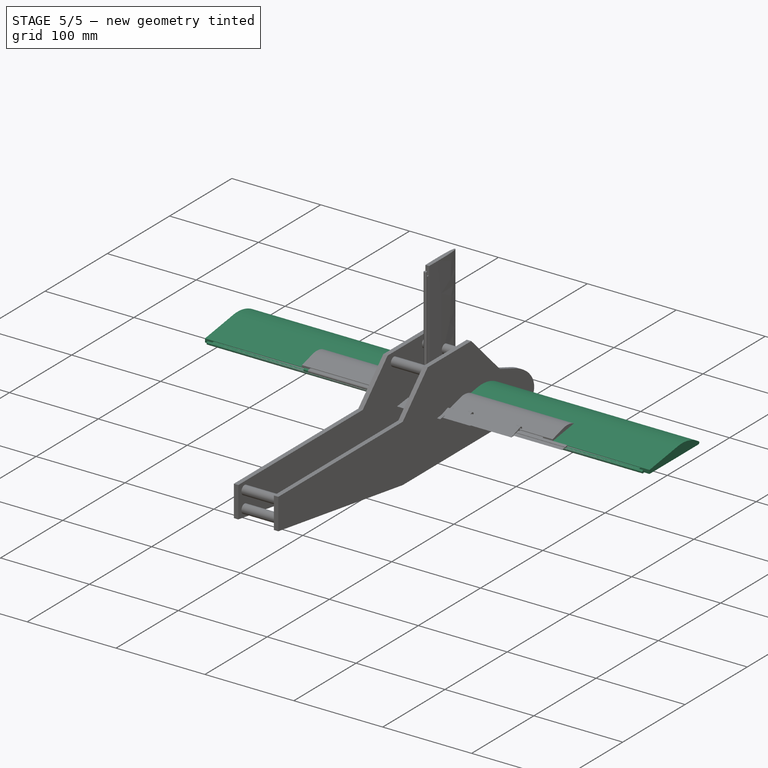
[diagram: stage 5 of 5 — iso view after this stage's code; geometry added in this stage tinted green]
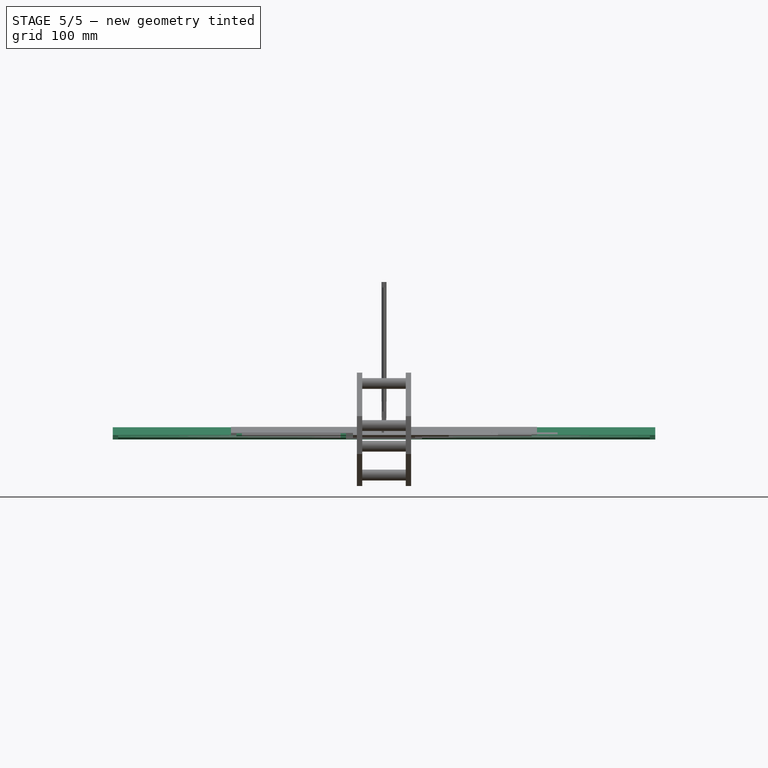
[diagram: stage 5 of 5 — front view after this stage's code; geometry added in this stage tinted green]
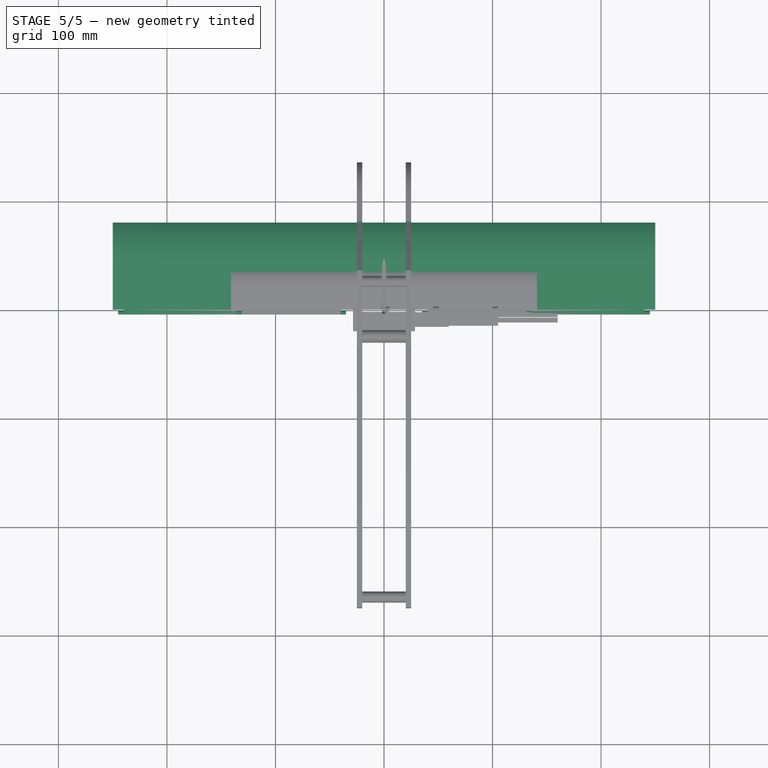
[diagram: stage 5 of 5 — top view after this stage's code; geometry added in this stage tinted green]
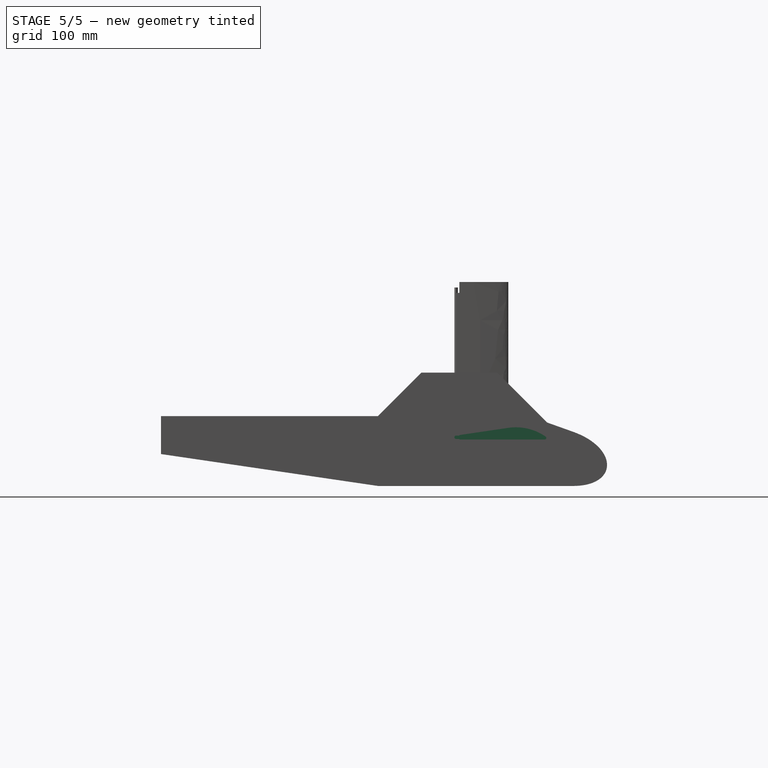
[diagram: stage 5 of 5 — right view after this stage's code; geometry added in this stage tinted green]
FEATURE [Sketcher::SketchObject] Sketch021
  ArcFitTolerance = 1e-06
  AttachmentSupport = -> [Pad012]
  ExternalGeometry = -> [Pad012]
  FullyConstrained = true
  MakeInternals = false
  MapMode = 5
  Placement = pos=(40,0,8.8e-15) rot=(0.57735,0.57735,-0.57735;4.18879rad)
  expr: Constraints[0] = VarSet.JointDiameter
  expr: Constraints[1] = VarSet.JointDiameter / 2
  sketch-geometry (2):
    g0: Circle CenterX=-3.06 CenterY=6.124e-13 CenterZ=0 NormalX=0 NormalY=0 NormalZ=1 AngleXU=0 Radius=1.56
    g1: GeomPoint [constr] X=-1.5 Y=-1.56 Z=0
  constraints (4):
    c: Diameter(g0) = 3.12
    c: Distance(g0,g-4) = 1.56
    c: Symmetric(g-4,g1,g0)
    c: Horizontal(g1,g-4)
FEATURE [PartDesign::Pad] Pad013
  BaseFeature = -> Pad012
  Direction = (-1,0,0)
  Length = 5
  Length2 = 10
  Placement = pos=(0,0,0) rot=(1,1,1;2.0944rad)
  Profile = -> Sketch021
  ReferenceAxis = -> Sketch021 [N_Axis]
  Suppressed = false
  Type = 0
  expr: Length = VarSet.JointWidth
FEATURE [Sketcher::SketchObject] Sketch022
  ArcFitTolerance = 1e-06
  AttachmentSupport = -> [Pad013]
  ExternalGeometry = -> [Pad013]
  FullyConstrained = true
  MakeInternals = false
  MapMode = 5
  Placement = pos=(-40,0,-8.8e-15) rot=(0.57735,0.57735,0.57735;2.0944rad)
  expr: Constraints[0] = VarSet.JointDiameter
  expr: Constraints[1] = VarSet.JointDiameter / 2
  sketch-geometry (2):
    g0: Circle CenterX=-3.06 CenterY=-5.875e-13 CenterZ=0 NormalX=0 NormalY=0 NormalZ=1 AngleXU=0 Radius=1.56
    g1: GeomPoint [constr] X=-1.5 Y=1.56 Z=0
  constraints (4):
    c: Diameter(g0) = 3.12
    c: Distance(g0,g-3) = 1.56
    c: Horizontal(g1,g-4)
    c: Symmetric(g1,g-3,g0)
FEATURE [PartDesign::Pad] Pad014
  BaseFeature = -> Pad013
  Direction = (1,0,0)
  Length = 5
  Length2 = 10
  Placement = pos=(0,0,0) rot=(1,1,1;2.0944rad)
  Profile = -> Sketch022
  ReferenceAxis = -> Sketch022 [N_Axis]
  Suppressed = false
  Type = 0
  expr: Length = VarSet.JointWidth
FEATURE [Sketcher::SketchObject] Sketch023
  ArcFitTolerance = 1e-06
  AttachmentSupport = -> [Pad014]
  ExternalGeometry = -> [Pad014]
  FullyConstrained = true
  MakeInternals = false
  MapMode = 5
  Placement = pos=(-131,0,-2.88e-14) rot=(0.57735,0.57735,-0.57735;4.18879rad)
  expr: Constraints[0] = VarSet.JointDiameter
  expr: Constraints[1] = VarSet.JointDiameter / 2
  sketch-geometry (2):
    g0: Circle CenterX=-3.06 CenterY=-6.786e-13 CenterZ=0 NormalX=0 NormalY=0 NormalZ=1 AngleXU=0 Radius=1.56
    g1: GeomPoint [constr] X=-1.5 Y=1.56 Z=0
  constraints (4):
    c: Diameter(g0) = 3.12
    c: Distance(g0,g-3) = 1.56
    c: Horizontal(g1,g-4)
    c: Symmetric(g1,g-3,g0)
FEATURE [PartDesign::Pad] Pad005
  BaseFeature = -> Pad014
  Direction = (-1,0,0)
  Length = 5
  Length2 = 10
  Placement = pos=(0,0,0) rot=(1,1,1;2.0944rad)
  Profile = -> Sketch023
  ReferenceAxis = -> Sketch023 [N_Axis]
  Suppressed = false
  Type = 0
  expr: Length = VarSet.JointWidth
FEATURE [Sketcher::SketchObject] Sketch024
  ArcFitTolerance = 1e-06
  AttachmentSupport = -> [Pad005]
  ExternalGeometry = -> [Pad005]
  FullyConstrained = true
  MakeInternals = false
  MapMode = 5
  Placement = pos=(0,3e-16,0) rot=(0.57735,0.57735,-0.57735;2.0944rad)
  expr: Constraints[12] = VarSet.JointFinHeight / 2
  expr: Constraints[9] = VarSet003.JointFinHeight
  sketch-geometry (5):
    g0: LineSegment StartX=-6.74911 StartY=2.06 StartZ=0 EndX=-6.74911 EndY=-2.06 EndZ=0
    g1: LineSegment StartX=-6.74911 StartY=-2.06 StartZ=0 EndX=-1.07e-14 EndY=-2.06 EndZ=0
    g2: LineSegment StartX=-1.07e-14 StartY=-2.06 StartZ=0 EndX=-1.07e-14 EndY=2.06 EndZ=0
    g3: LineSegment StartX=-1.07e-14 StartY=2.06 StartZ=0 EndX=-6.74911 EndY=2.06 EndZ=0
    g4: GeomPoint [constr] X=-3.37456 Y=0 Z=0
  constraints (13):
    c: Coincident(g0,g1)
    c: Coincident(g1,g2)
    c: Coincident(g2,g3)
    c: Coincident(g3,g0)
    c: Vertical(g0)
    c: Vertical(g2)
    c: Horizontal(g1)
    c: Horizontal(g3)
    c: Symmetric(g2,g0,g4)
    c: DistanceY(g0,g0) = 4.12
    c: PointOnObject(g4,g-1)
    c: PointOnObject(g0,g-4)
    c: Distance(g2,g-5) = 2.06
FEATURE [PartDesign::Pocket] Pocket009
  BaseFeature = -> Pad005
  Direction = (0,1,-1.8e-15)
  Length = 17.5
  Length2 = 5
  Placement = pos=(0,0,0) rot=(1,1,1;2.0944rad)
  Profile = -> Sketch024
  ReferenceAxis = -> Sketch024 [N_Axis]
  Suppressed = false
  Type = 0
  expr: Length = VarSet001.StraightLength
FEATURE [Sketcher::SketchObject] Sketch045
  ArcFitTolerance = 1e-06
  AttachmentSupport = -> [YZ_Plane008]
  FullyConstrained = true
  MakeInternals = false
  MapMode = 5
  Placement = pos=(0,0,0) rot=(0.57735,0.57735,0.57735;2.0944rad)
  expr: Constraints[0] = VarSet002.FinHeight
  expr: Constraints[10] = VarSet002.WingStraightAngle
  expr: Constraints[18] = VarSet002.WingLength
  expr: Constraints[19] = VarSet002.WingStraightLenght
  sketch-geometry (8):
    g0: ArcOfCircle CenterX=52.0407 CenterY=-41.0342 CenterZ=0 NormalX=0 NormalY=0 NormalZ=1 AngleXU=0 Radius=48.1963 StartAngle=0.966726 EndAngle=1.7174
    g1: ArcOfCircle CenterX=78.5584 CenterY=-2.61 CenterZ=0 NormalX=0 NormalY=0 NormalZ=1 AngleXU=0 Radius=1.51 StartAngle=4.71239 EndAngle=7.24991
    g2: LineSegment StartX=0 StartY=-4.12 StartZ=0 EndX=78.5584 EndY=-4.12 EndZ=0
    g3: LineSegment StartX=0 StartY=0 StartZ=0 EndX=45 EndY=6.64502 EndZ=0
    g4: LineSegment StartX=0 StartY=0 StartZ=0 EndX=0 EndY=-4.12 EndZ=0
    g5: LineSegment [constr] StartX=79.416 StartY=-1.36722 StartZ=0 EndX=78.5584 EndY=-4.12 EndZ=0
    g6: LineSegment [constr] StartX=79.416 StartY=-1.36722 StartZ=0 EndX=80 EndY=-3.05917 EndZ=0
    g7: LineSegment [constr] StartX=78.5584 StartY=-4.12 StartZ=0 EndX=80 EndY=-3.05917 EndZ=0
  constraints (20):
    c: DistanceY(g2,g3) = 4.12
    c: Coincident(g4,g2)
    c: Radius(g1) = 1.51
    c: Tangent(g0,g3) = 1.5708
    c: Vertical(g4)
    c: Horizontal(g2)
    c: Tangent(g2,g1) = -1.5708
    c: Tangent(g0,g1) = -1.5708
    c: Coincident(g4,g3)
    c: Coincident(g3,g-1)
    c: Angle(g2,g3) = 0.146608
    c: Coincident(g5,g0)
    c: Coincident(g5,g1)
    c: Coincident(g6,g0)
    c: PointOnObject(g6,g1)
    c: Coincident(g7,g1)
    c: Coincident(g7,g6)
    c: Equal(g6,g7)
    c: Distance(g6,g4) = 80
    c: Distance(g0,g4) = 45
FEATURE [PartDesign::Pad] Pad021
  Direction = (1,0,0)
  Length = 500
  Length2 = 10
  Midplane = true
  Placement = pos=(0,0,0) rot=(1,1,1;2.0944rad)
  Profile = -> Sketch045
  ReferenceAxis = -> Sketch045 [N_Axis]
  Suppressed = false
  Type = 0
  expr: Length = VarSet002.Width
FEATURE [Sketcher::SketchObject] Sketch046
  ArcFitTolerance = 1e-06
  AttachmentSupport = -> [Pad021]
  ExternalGeometry = -> [Pad021]
  FullyConstrained = true
  MakeInternals = false
  MapMode = 5
  Placement = pos=(0,0,0) rot=(0.57735,0.57735,-0.57735;2.0944rad)
  expr: Constraints[15] = VarSet002.JointWidth + VarSet002.JointMargin
  expr: Constraints[16] = VarSet002.JointWidth + VarSet002.JointMargin
  expr: Constraints[21] = VarSet.JointDiameter
  expr: Constraints[30] = VarSet002.FinWidth - VarSet.JointWidth * 2 - VarSet.JointOffset * 2
  sketch-geometry (11):
    g0: LineSegment StartX=3.62 StartY=240 StartZ=0 EndX=0.5 EndY=240 EndZ=0
    g1: LineSegment StartX=0.5 StartY=40 StartZ=0 EndX=3.62 EndY=40 EndZ=0
    g2: LineSegment StartX=3.62 StartY=-40 StartZ=0 EndX=0.5 EndY=-40 EndZ=0
    g3: LineSegment StartX=0.5 StartY=-240 StartZ=0 EndX=3.62 EndY=-240 EndZ=0
    g4: LineSegment StartX=0.5 StartY=240 StartZ=0 EndX=0.5 EndY=40 EndZ=0
    g5: LineSegment StartX=3.62 StartY=240 StartZ=0 EndX=3.62 EndY=40 EndZ=0
    g6: LineSegment StartX=0.5 StartY=-40 StartZ=0 EndX=0.5 EndY=-240 EndZ=0
    g7: LineSegment StartX=3.62 StartY=-40 StartZ=0 EndX=3.62 EndY=-240 EndZ=0
    g8: GeomPoint X=2.06 Y=-140 Z=0
    g9: LineSegment [constr] StartX=1.55e-14 StartY=-140 StartZ=0 EndX=2.06 EndY=-140 EndZ=0
    g10: LineSegment [constr] StartX=4.12 StartY=-140 StartZ=0 EndX=2.06 EndY=-140 EndZ=0
  constraints (31):
    c: Horizontal(g1)
    c: Horizontal(g2)
    c: Horizontal(g3)
    c: Coincident(g4,g0)
    c: Coincident(g4,g1)
    c: Vertical(g4)
    c: Coincident(g5,g0)
    c: Coincident(g5,g1)
    c: Vertical(g5)
    c: Coincident(g6,g2)
    c: Coincident(g6,g3)
    c: Vertical(g6)
    c: Coincident(g7,g2)
    c: Coincident(g7,g3)
    c: Symmetric(g2,g3,g8)
    c: Distance(g-4,g3) = 10
    c: Distance(g-3,g0) = 10
    c: Vertical(g7)
    c: Equal(g4,g6)
    c: Equal(g7,g5)
    c: Equal(g2,g0)
    c: Distance(g7,g6) = 3.12
    c: PointOnObject(g9,g-5)
    c: Coincident(g9,g8)
    c: Horizontal(g9)
    c: PointOnObject(g10,g-6)
    c: Coincident(g10,g8)
    c: Horizontal(g10)
    c: Equal(g9,g10)
    c: Vertical(g2,g1)
    c: DistanceY(g3,g2) = 200
FEATURE [PartDesign::Pad] Pad022
  BaseFeature = -> Pad021
  Direction = (0,-1,0)
  Length = 4.62
  Length2 = 10
  Placement = pos=(0,0,0) rot=(1,1,1;2.0944rad)
  Profile = -> Sketch046
  ReferenceAxis = -> Sketch046 [N_Axis]
  Suppressed = false
  Type = 0
  expr: Length = VarSet002.FinHeight + 0.5 mm
FEATURE [Sketcher::SketchObject] Sketch047
  ArcFitTolerance = 1e-06
  AttachmentSupport = -> [Pad022]
  ExternalGeometry = -> [Pad022]
  FullyConstrained = true
  MakeInternals = false
  MapMode = 5
  Placement = pos=(240,0,2.2662e-12) rot=(0.57735,0.57735,0.57735;2.0944rad)
  expr: Constraints[0] = VarSet.JointDiameter
  expr: Constraints[1] = VarSet.JointDiameter / 2
  sketch-geometry (2):
    g0: Circle CenterX=-3.06 CenterY=-2.06 CenterZ=0 NormalX=0 NormalY=0 NormalZ=1 AngleXU=0 Radius=1.56
    g1: GeomPoint [constr] X=-6.12 Y=-0.5 Z=0
  constraints (4):
    c: Diameter(g0) = 3.12
    c: DistanceX(g-3,g0) = 1.56
    c: Symmetric(g1,g-4,g0)
    c: Horizontal(g1,g-3)
FEATURE [PartDesign::Pad] Pad023
  BaseFeature = -> Pad022
  Direction = (1,1e-16,9.4e-15)
  Length = 5
  Length2 = 10
  Placement = pos=(0,0,0) rot=(1,1,1;2.0944rad)
  Profile = -> Sketch047
  ReferenceAxis = -> Sketch047 [N_Axis]
  Suppressed = false
  Type = 0
FEATURE [Sketcher::SketchObject] Sketch048
  ArcFitTolerance = 1e-06
  AttachmentSupport = -> [Pad023]
  ExternalGeometry = -> [Pad023]
  FullyConstrained = true
  MakeInternals = false
  MapMode = 5
  Placement = pos=(40,-8.9e-15,1.78e-14) rot=(0.57735,0.57735,-0.57735;4.18879rad)
  expr: Constraints[0] = VarSet.JointDiameter
  expr: Constraints[3] = VarSet.JointDiameter / 2
  sketch-geometry (2):
    g0: Circle CenterX=-3.06 CenterY=2.06 CenterZ=0 NormalX=0 NormalY=0 NormalZ=1 AngleXU=0 Radius=1.56
    g1: GeomPoint [constr] X=-6.12 Y=0.5 Z=0
  constraints (4):
    c: Diameter(g0) = 3.12
    c: Symmetric(g1,g-4,g0)
    c: Horizontal(g-4,g1)
    c: DistanceX(g-3,g0) = 1.56
FEATURE [PartDesign::Pad] Pad024
  BaseFeature = -> Pad023
  Direction = (-1,0,0)
  Length = 5
  Length2 = 10
  Placement = pos=(0,0,0) rot=(1,1,1;2.0944rad)
  Profile = -> Sketch048
  ReferenceAxis = -> Sketch048 [N_Axis]
  Suppressed = false
  Type = 0
FEATURE [Sketcher::SketchObject] Sketch049
  ArcFitTolerance = 1e-06
  AttachmentSupport = -> [Pad024]
  ExternalGeometry = -> [Pad024]
  FullyConstrained = true
  MakeInternals = false
  MapMode = 5
  Placement = pos=(-40,1.78e-14,-2.22e-14) rot=(0.57735,0.57735,0.57735;2.0944rad)
  expr: Constraints[0] = VarSet.JointDiameter
  expr: Constraints[3] = VarSet.JointDiameter / 2
  sketch-geometry (2):
    g0: Circle CenterX=-3.06 CenterY=-2.06 CenterZ=0 NormalX=0 NormalY=0 NormalZ=1 AngleXU=0 Radius=1.56
    g1: GeomPoint [constr] X=-6.12 Y=-3.62 Z=0
  constraints (4):
    c: Diameter(g0) = 3.12
    c: Symmetric(g-4,g1,g0)
    c: Horizontal(g1,g-4)
    c: DistanceX(g-3,g0) = 1.56
FEATURE [PartDesign::Pad] Pad025
  BaseFeature = -> Pad024
  Direction = (1,0,0)
  Length = 5
  Length2 = 10
  Placement = pos=(0,0,0) rot=(1,1,1;2.0944rad)
  Profile = -> Sketch049
  ReferenceAxis = -> Sketch049 [N_Axis]
  Suppressed = false
  Type = 0
FEATURE [Sketcher::SketchObject] Sketch050
  ArcFitTolerance = 1e-06
  AttachmentSupport = -> [Pad025]
  ExternalGeometry = -> [Pad025]
  FullyConstrained = true
  MakeInternals = false
  MapMode = 5
  Placement = pos=(-240,1.599e-13,-1.599e-13) rot=(0.57735,0.57735,-0.57735;4.18879rad)
  expr: Constraints[0] = VarSet.JointDiameter
  expr: Constraints[3] = VarSet.JointDiameter / 2
  sketch-geometry (2):
    g0: Circle CenterX=-3.06 CenterY=2.06 CenterZ=0 NormalX=0 NormalY=0 NormalZ=1 AngleXU=0 Radius=1.56
    g1: GeomPoint [constr] X=-6.12 Y=0.5 Z=0
  constraints (4):
    c: Diameter(g0) = 3.12
    c: Symmetric(g-4,g1,g0)
    c: Horizontal(g-4,g1)
    c: DistanceX(g-3,g0) = 1.56
FEATURE [PartDesign::Pad] Pad026
  BaseFeature = -> Pad025
  Direction = (-1,0,0)
  Length = 5
  Length2 = 10
  Placement = pos=(0,0,0) rot=(1,1,1;2.0944rad)
  Profile = -> Sketch050
  ReferenceAxis = -> Sketch050 [N_Axis]
  Suppressed = false
  Type = 0
FEATURE [Sketcher::SketchObject] Sketch052
  ArcFitTolerance = 1e-06
  AttachmentSupport = -> [Pad026]
  ExternalGeometry = -> [Pad026]
  FullyConstrained = true
  MakeInternals = false
  MapMode = 5
  Placement = pos=(-240,2.132e-13,-1.865e-13) rot=(0.57735,0.57735,-0.57735;4.18879rad)
  sketch-geometry (4):
    g0: ArcOfCircle CenterX=-3.06 CenterY=2.06 CenterZ=0 NormalX=0 NormalY=0 NormalZ=1 AngleXU=0 Radius=1.56 StartAngle=1.5708 EndAngle=4.71239
    g1: LineSegment StartX=-4.62 StartY=3.62 StartZ=0 EndX=-3.06 EndY=3.62 EndZ=0
    g2: LineSegment StartX=-4.62 StartY=3.62 StartZ=0 EndX=-4.62 EndY=0.5 EndZ=0
    g3: LineSegment StartX=-4.62 StartY=0.5 StartZ=0 EndX=-3.06 EndY=0.5 EndZ=0
  constraints (9):
    c: Coincident(g1,g0)
    c: Coincident(g2,g1)
    c: Coincident(g3,g2)
    c: Coincident(g3,g0)
    c: Equal(g-4,g0)
    c: Coincident(g1,g-5)
    c: Coincident(g2,g-7)
    c: Coincident(g0,g-3)
    c: Coincident(g0,g-7)
FEATURE [PartDesign::Pocket] Pocket024
  BaseFeature = -> Pad026
  Direction = (1,0,0)
  Length = 0
  Length2 = 5
  Placement = pos=(0,0,0) rot=(1,1,1;2.0944rad)
  Profile = -> Sketch052
  ReferenceAxis = -> Sketch052 [N_Axis]
  Suppressed = false
  Type = 3
  UpToFace = -> Pad026 [Face11]
FEATURE [PartDesign::Body] Body008  label="Wing"
  AllowCompound = false
  Group = -> [Sketch045,Pad021,Sketch046,Pad022,Sketch047,Pad023,Sketch048,Pad024,Sketch049,Pad025,Sketch050,Pad026,Sketch052,Pocket024]
  Origin = -> Origin008
  Tip = -> Pocket024
FEATURE [Sketcher::SketchObject] Sketch053
  ArcFitTolerance = 1e-06
  AttachmentSupport = -> [Pocket009]
  ExternalGeometry = -> [Pocket009]
  FullyConstrained = true
  MakeInternals = false
  MapMode = 5
  Placement = pos=(-131,0,-2.88e-14) rot=(0.57735,0.57735,-0.57735;4.18879rad)
  sketch-geometry (4):
    g0: ArcOfCircle CenterX=-3.06001 CenterY=-5.59e-14 CenterZ=0 NormalX=0 NormalY=0 NormalZ=1 AngleXU=0 Radius=1.56 StartAngle=1.57079 EndAngle=4.7124
    g1: LineSegment StartX=-4.62 StartY=1.56 StartZ=0 EndX=-4.62 EndY=-1.56 EndZ=0
    g2: LineSegment StartX=-3.06 StartY=-1.56 StartZ=0 EndX=-4.62 EndY=-1.56 EndZ=0
    g3: LineSegment StartX=-3.06 StartY=1.56 StartZ=0 EndX=-4.62 EndY=1.56 EndZ=0
  constraints (9):
    c: Equal(g0,g-3)
    c: Coincident(g3,g0)
    c: Coincident(g3,g1)
    c: Coincident(g1,g2)
    c: Coincident(g2,g0)
    c: Coincident(g0,g-4)
    c: Coincident(g0,g-7)
    c: Coincident(g1,g-7)
    c: Coincident(g1,g-5)
FEATURE [PartDesign::Pocket] Pocket025
  BaseFeature = -> Pocket009
  Direction = (1,-1e-15,1e-16)
  Length = 0
  Length2 = 5
  Placement = pos=(0,0,0) rot=(1,1,1;2.0944rad)
  Profile = -> Sketch053
  ReferenceAxis = -> Sketch053 [N_Axis]
  Suppressed = false
  Type = 3
  UpToFace = -> Pocket009 [Face15]
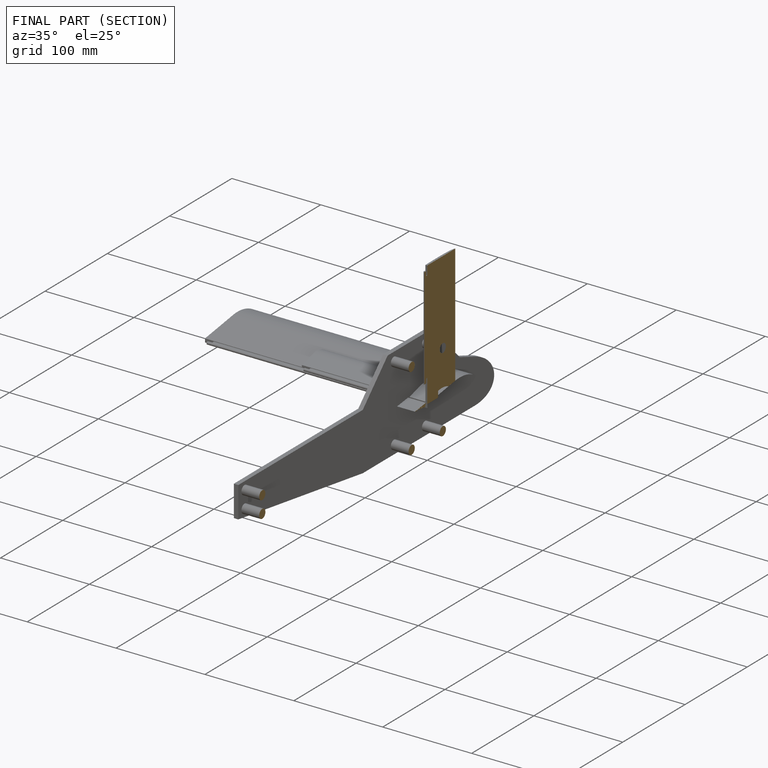
[diagram: finished part — half-section view (interior)]
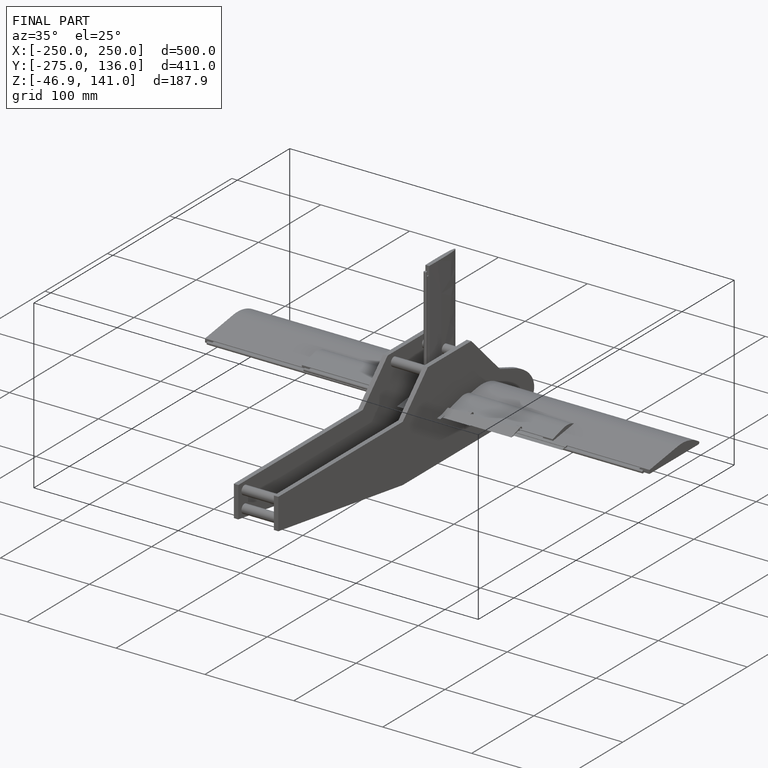
[diagram: finished part — iso view with bounding-box wireframe]
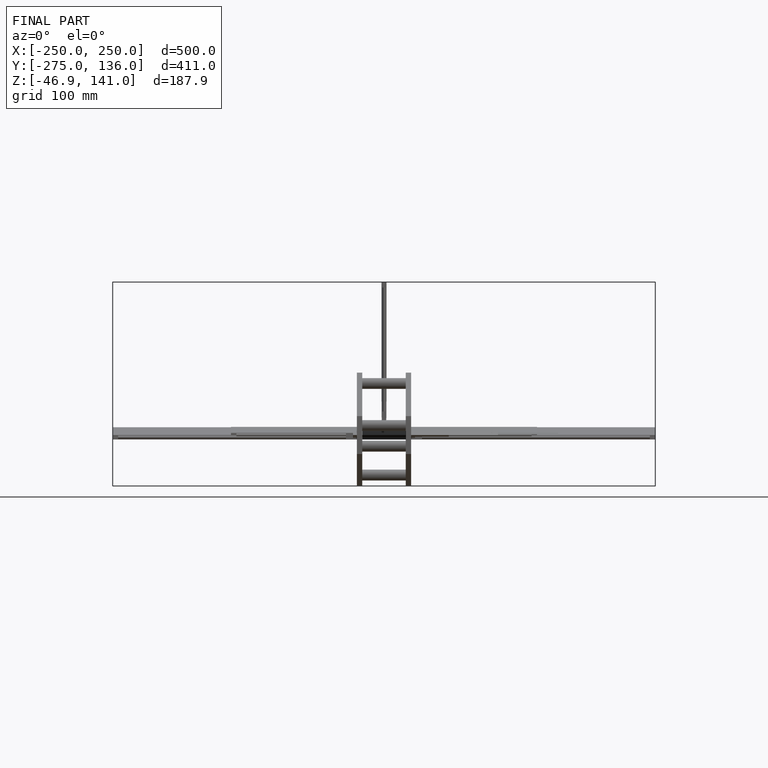
[diagram: finished part — front view with bounding-box wireframe]
